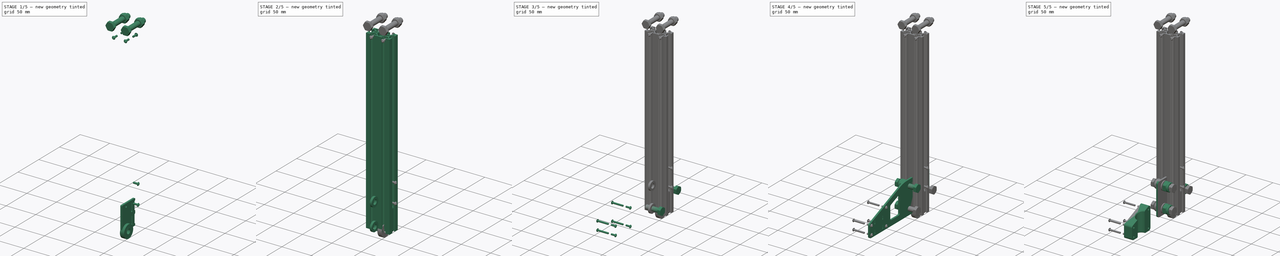
[diagram: build sequence overview — one tinted view per stage of 5, left to right]
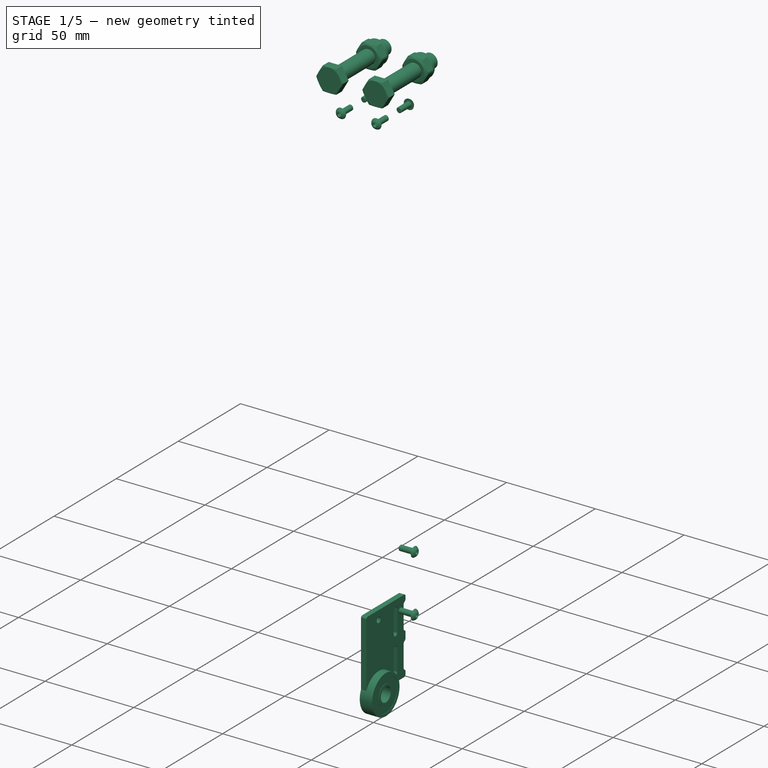
[diagram: stage 1 of 5 — iso view after this stage's code; geometry added in this stage tinted green]
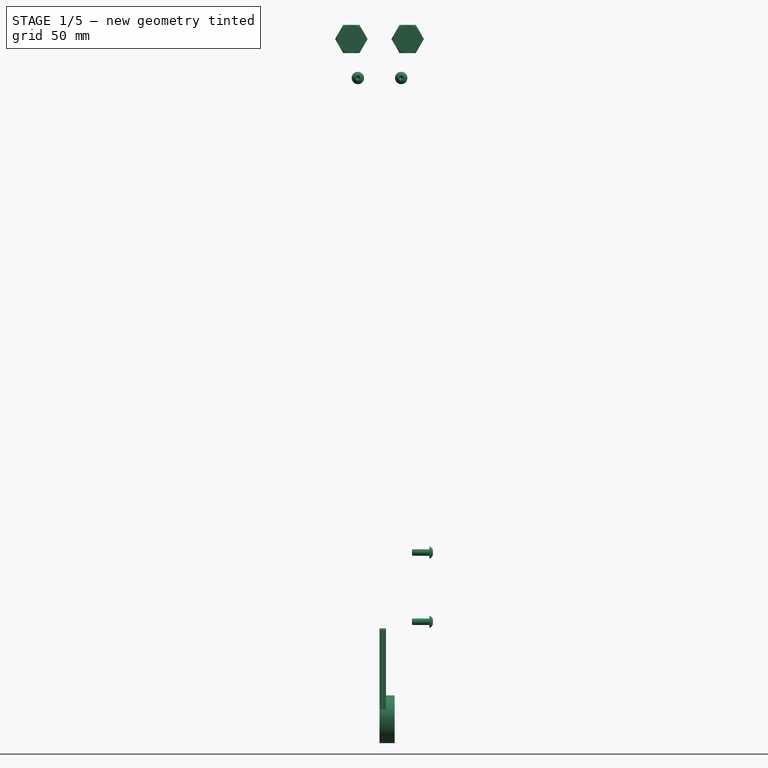
[diagram: stage 1 of 5 — front view after this stage's code; geometry added in this stage tinted green]
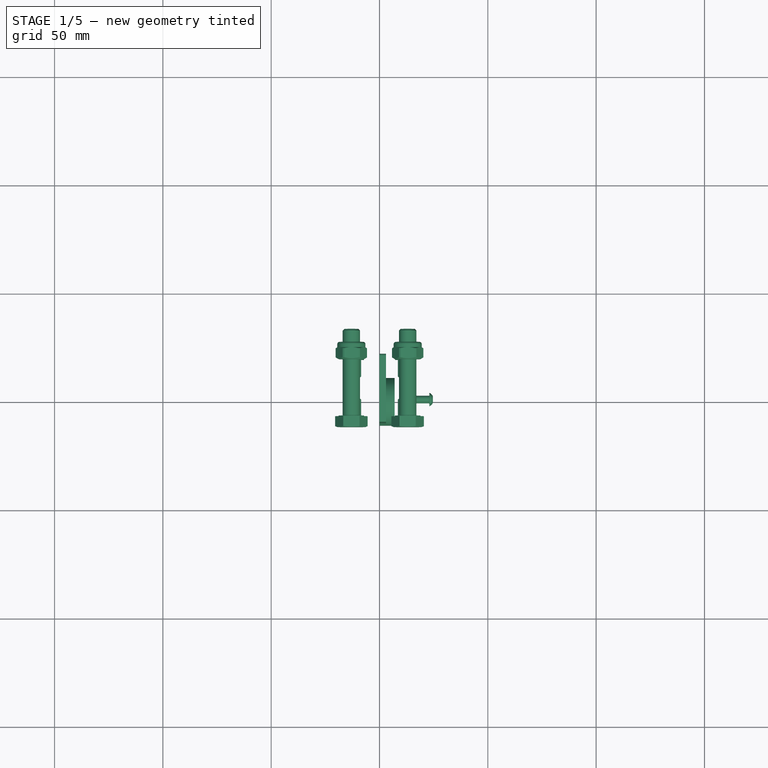
[diagram: stage 1 of 5 — top view after this stage's code; geometry added in this stage tinted green]
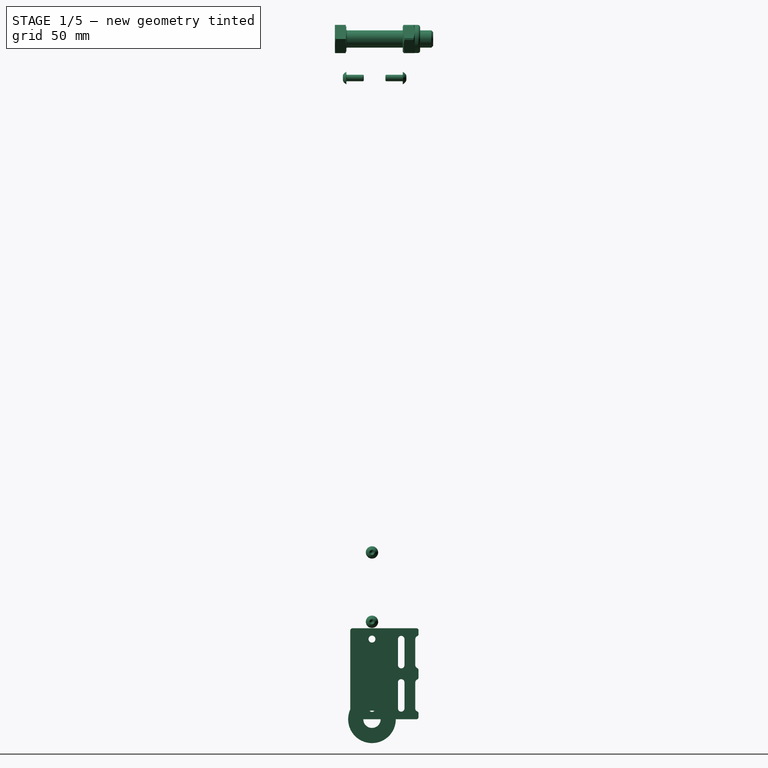
[diagram: stage 1 of 5 — right view after this stage's code; geometry added in this stage tinted green]
FCSTD DOCUMENT  (FreeCAD 2021.1015R24301 +4280 (Git))
Label: BarbaHeatSetInsertPress
License: Creative Commons Attribution-NoDerivatives
LicenseURL: http://creativecommons.org/licenses/by-nd/4.0/
objects: Part::FeaturePython×36, App::Link×34, App::DocumentObjectGroup×12, Sketcher::SketchObject×11, PartDesign::Fillet×11, PartDesign::Body×9, PartDesign::Pad×8, TechDraw::DrawProjGroupItem×6, TechDraw::DrawProjGroup×6, App::Part×5, TechDraw::DrawSVGTemplate×4, TechDraw::DrawPage×4, PartDesign::Chamfer×3, PartDesign::SubShapeBinder×2, Part::SubShapeBinder×1, PartDesign::Line×1, PartDesign::Groove×1, PartDesign::Pocket×1, Part::Mirroring×1, PartDesign::FeatureBase×1, +1 more types
note: 138 computed .brp shape members not serialized (recipe doc carries the construction recipe); baked Part::Feature solids carry a one-line shape summary decoded from their .brp

FEATURE [PartDesign::Body] Body003  label="RenvoiAngle"
  AutoGroupSolids = false
  ExportMode = 0
  Group = -> [Sketch003,Pad003,Fillet005]
  Origin = -> Origin003
  SingleSolid = true
  Tip = -> Fillet005
  _ExportChildren = -> [Pad003,Fillet005]
  _GroupVersion = 1
FEATURE [TechDraw::DrawSVGTemplate] Template002
  Height = 210
  Orientation = 1
  Width = 297
FEATURE [TechDraw::DrawProjGroupItem] ProjItem002  label="Front002"
  CoarseView = false
  Direction = (1,0,0)
  Focus = 100
  HardHidden = false
  IsoCount = 0
  IsoHidden = false
  IsoVisible = false
  LockPosition = true
  Perspective = false
  Rotation = 0
  RotationVector = (0,-1,0)
  ScaleType = 2
  SeamHidden = false
  SeamVisible = true
  SmoothHidden = false
  SmoothVisible = true
  Source = -> [Fillet004]
  Type = 0
  X = 0
  XDirection = (0,-1,0)
  Y = 0
FEATURE [TechDraw::DrawProjGroup] ProjGroup002
  Anchor = -> ProjItem002
  AutoDistribute = true
  LockPosition = false
  ProjectionType = 0
  Rotation = 0
  ScaleType = 0
  Source = -> [Fillet004]
  Views = -> [ProjItem002]
  X = 37.8834
  Y = 177.439
  spacingX = 15
  spacingY = 15
FEATURE [TechDraw::DrawProjGroupItem] ProjItem003  label="Front003"
  CoarseView = false
  Direction = (0,-1,0)
  Focus = 100
  HardHidden = false
  IsoCount = 0
  IsoHidden = false
  IsoVisible = false
  LockPosition = true
  Perspective = false
  Rotation = 0
  RotationVector = (1,0,0)
  ScaleType = 2
  SeamHidden = false
  SeamVisible = true
  SmoothHidden = false
  SmoothVisible = true
  Source = -> [Fillet005]
  Type = 0
  X = 0
  XDirection = (1,0,0)
  Y = 0
FEATURE [TechDraw::DrawProjGroup] ProjGroup003
  Anchor = -> ProjItem003
  AutoDistribute = true
  LockPosition = false
  ProjectionType = 0
  Rotation = 0
  ScaleType = 0
  Source = -> [Fillet005]
  Views = -> [ProjItem003]
  X = 97.2859
  Y = 186.724
  spacingX = 15
  spacingY = 15
FEATURE [TechDraw::DrawProjGroupItem] ProjItem004  label="Front004"
  CoarseView = false
  Direction = (0,-1,0)
  Focus = 100
  HardHidden = false
  IsoCount = 0
  IsoHidden = false
  IsoVisible = false
  LockPosition = true
  Perspective = false
  Rotation = 0
  RotationVector = (1,0,0)
  ScaleType = 2
  SeamHidden = false
  SeamVisible = true
  SmoothHidden = false
  SmoothVisible = true
  Source = -> [Fillet005]
  Type = 0
  X = 0
  XDirection = (1,0,0)
  Y = 0
FEATURE [TechDraw::DrawProjGroup] ProjGroup004
  Anchor = -> ProjItem004
  AutoDistribute = true
  LockPosition = false
  ProjectionType = 0
  Rotation = 0
  ScaleType = 0
  Source = -> [Fillet005]
  Views = -> [ProjItem004]
  X = 142.83
  Y = 186.468
  spacingX = 15
  spacingY = 15
FEATURE [TechDraw::DrawPage] Page002  label="laser3mmChariot"
  KeepUpdated = true
  NextBalloonIndex = 1
  ProjectionType = 0
  Template = -> Template002
  Views = -> [ProjGroup002,ProjGroup003,ProjGroup004]
FEATURE [Sketcher::SketchObject] Sketch004
  FullyConstrained = true
  MapMode = 5
  Placement = pos=(0,0,0) rot=(0.57735,0.57735,0.57735;2.0944rad)
  Support = -> [YZ_Plane004]
  sketch-geometry (29):
    g0: LineSegment StartX=-10 StartY=0 StartZ=0 EndX=21.5 EndY=0 EndZ=0
    g1: LineSegment [constr] StartX=21.5 StartY=0 StartZ=0 EndX=21.5 EndY=42 EndZ=0
    g2: LineSegment StartX=21.5 StartY=42 StartZ=0 EndX=-10 EndY=42 EndZ=0
    g3: LineSegment StartX=-10 StartY=42 StartZ=0 EndX=-10 EndY=0 EndZ=0
    g4: Circle CenterX=0 CenterY=37 CenterZ=0 NormalX=0 NormalY=0 NormalZ=1 AngleXU=0 Radius=1.6
    g5: Circle CenterX=0 CenterY=5 CenterZ=0 NormalX=0 NormalY=0 NormalZ=1 AngleXU=0 Radius=1.6
    g6: ArcOfCircle CenterX=13.5 CenterY=37 CenterZ=0 NormalX=0 NormalY=0 NormalZ=1 AngleXU=0 Radius=1.5 StartAngle=2e-15 EndAngle=3.14159
    g7: ArcOfCircle CenterX=13.5 CenterY=25 CenterZ=0 NormalX=0 NormalY=0 NormalZ=1 AngleXU=0 Radius=1.5 StartAngle=3.14159 EndAngle=6.28319
    g8: LineSegment StartX=12 StartY=37 StartZ=0 EndX=12 EndY=25 EndZ=0
    g9: LineSegment StartX=15 StartY=37 StartZ=0 EndX=15 EndY=25 EndZ=0
    g10: ArcOfCircle CenterX=13.5 CenterY=17 CenterZ=0 NormalX=0 NormalY=0 NormalZ=1 AngleXU=0 Radius=1.5 StartAngle=1.1e-15 EndAngle=3.14159
    g11: ArcOfCircle CenterX=13.5 CenterY=5 CenterZ=0 NormalX=0 NormalY=0 NormalZ=1 AngleXU=0 Radius=1.5 StartAngle=3.14159 EndAngle=6.28319
    g12: LineSegment StartX=12 StartY=17 StartZ=0 EndX=12 EndY=5 EndZ=0
    g13: LineSegment StartX=15 StartY=17 StartZ=0 EndX=15 EndY=5 EndZ=0
    g14: ArcOfCircle [constr] CenterX=21.5 CenterY=37 CenterZ=0 NormalX=0 NormalY=0 NormalZ=1 AngleXU=0 Radius=1.5 StartAngle=2e-15 EndAngle=3.14159
    g15: ArcOfCircle [constr] CenterX=21.5 CenterY=25 CenterZ=0 NormalX=0 NormalY=0 NormalZ=1 AngleXU=0 Radius=1.5 StartAngle=3.14159 EndAngle=6.28319
    g16: LineSegment StartX=20 StartY=37 StartZ=0 EndX=20 EndY=25 EndZ=0
    g17: LineSegment [constr] StartX=23 StartY=37 StartZ=0 EndX=23 EndY=25 EndZ=0
    g18: ArcOfCircle [constr] CenterX=21.5 CenterY=17 CenterZ=0 NormalX=0 NormalY=0 NormalZ=1 AngleXU=0 Radius=1.5 StartAngle=-9e-16 EndAngle=3.14159
    g19: ArcOfCircle [constr] CenterX=21.5 CenterY=5 CenterZ=0 NormalX=0 NormalY=0 NormalZ=1 AngleXU=0 Radius=1.5 StartAngle=3.14159 EndAngle=6.28319
    g20: LineSegment StartX=20 StartY=17 StartZ=0 EndX=20 EndY=5 EndZ=0
    g21: LineSegment [constr] StartX=23 StartY=17 StartZ=0 EndX=23 EndY=5 EndZ=0
    g22: LineSegment StartX=21.5 StartY=42 StartZ=0 EndX=21.5 EndY=38.5 EndZ=0
    g23: LineSegment StartX=21.5 StartY=23.5 StartZ=0 EndX=21.5 EndY=18.5 EndZ=0
    g24: LineSegment StartX=21.5 StartY=0 StartZ=0 EndX=21.5 EndY=3.5 EndZ=0
    g25: ArcOfCircle CenterX=21.5 CenterY=25 CenterZ=0 NormalX=0 NormalY=0 NormalZ=1 AngleXU=0 Radius=1.5 StartAngle=3.14159 EndAngle=4.71239
    g26: ArcOfCircle CenterX=21.5 CenterY=17 CenterZ=0 NormalX=0 NormalY=0 NormalZ=1 AngleXU=0 Radius=1.5 StartAngle=1.5708 EndAngle=3.14159
    g27: ArcOfCircle CenterX=21.5 CenterY=5 CenterZ=0 NormalX=0 NormalY=0 NormalZ=1 AngleXU=0 Radius=1.5 StartAngle=3.14159 EndAngle=4.71239
    g28: ArcOfCircle CenterX=21.5 CenterY=37 CenterZ=0 NormalX=0 NormalY=0 NormalZ=1 AngleXU=0 Radius=1.5 StartAngle=1.5708 EndAngle=3.14159
  constraints (76):
    c: Coincident(g0,g1)
    c: Coincident(g1,g2)
    c: Coincident(g2,g3)
    c: Coincident(g3,g0)
    c: Horizontal(g0)
    c: Horizontal(g2)
    c: Vertical(g1)
    c: Vertical(g3)
    c: PointOnObject(g0,g-1)
    c: DistanceX(g0) = -10
    c: PointOnObject(g4,g-2)
    c: PointOnObject(g5,g-2)
    c: Diameter(g5) = 3.2
    c: Equal(g5,g4)
    c: DistanceY(g4,g2) = 5
    c: DistanceY(g0,g5) = 5
    c: Tangent(g6,g9) = 1.5708
    c: Tangent(g6,g8) = -1.5708
    c: Tangent(g8,g7) = -1.5708
    c: Tangent(g9,g7) = 1.5708
    c: Vertical(g8)
    c: Equal(g6,g7)
    c: Tangent(g10,g13) = 1.5708
    c: Tangent(g10,g12) = -1.5708
    c: Tangent(g12,g11) = -1.5708
    c: Tangent(g13,g11) = 1.5708
    c: Vertical(g12)
    c: Equal(g10,g11)
    c: Tangent(g14,g17) = 1.5708
    c: Tangent(g14,g16) = -1.5708
    c: Tangent(g16,g15) = -1.5708
    c: Tangent(g17,g15) = 1.5708
    c: Vertical(g16)
    c: Equal(g14,g15)
    c: PointOnObject(g14,g1)
    c: Tangent(g18,g21) = 1.5708
    c: Tangent(g18,g20) = -1.5708
    c: Tangent(g20,g19) = -1.5708
    c: Tangent(g21,g19) = 1.5708
    c: Vertical(g20)
    c: Equal(g18,g19)
    c: PointOnObject(g18,g1)
    c: Horizontal(g10,g18)
    c: Horizontal(g19,g11)
    c: Horizontal(g7,g15)
    c: Horizontal(g6,g14)
    c: Equal(g6,g14)
    c: Equal(g14,g10)
    c: Equal(g10,g18)
    c: Diameter(g14) = 3
    c: Equal(g17,g21)
    c: Horizontal(g6,g4)
    c: Horizontal(g11,g5)
    c: DistanceY(g17,g17) = 12
    c: DistanceY(g10,g7) = 8
    c: Vertical(g7,g10)
    c: DistanceX(g6,g14) = 5
    c: Coincident(g22,g2)
    c: PointOnObject(g22,g1)
    c: PointOnObject(g23,g1)
    c: PointOnObject(g23,g1)
    c: Coincident(g24,g0)
    c: Vertical(g24)
    c: DistanceX(g6) = 12
    c: Coincident(g25,g15)
    c: Coincident(g25,g16)
    c: Coincident(g25,g23)
    c: Coincident(g26,g18)
    c: Coincident(g26,g23)
    c: Coincident(g26,g20)
    c: Coincident(g27,g19)
    c: Coincident(g27,g20)
    c: Coincident(g27,g24)
    c: Coincident(g28,g14)
    c: Coincident(g28,g16)
    c: Coincident(g28,g22)
FEATURE [PartDesign::Pad] Pad004
  AddSubType = 0
  CheckUpToFaceLimits = true
  ClaimChildren = false
  Direction = (1,1,1)
  Fit = 0
  FitJoin = 0
  InnerFit = 0
  InnerFitJoin = 0
  InnerTaperAngle = 0
  InnerTaperAngleRev = 0
  Length = 3
  Length2 = 100
  Linearize = true
  NewSolid = false
  Placement = pos=(0,0,0) rot=(0.57735,0.57735,0.57735;2.0944rad)
  Profile = -> Sketch004
  Refine = true
  Suppress = false
  Type = 0
  _ProfileBasedVersion = 1
FEATURE [PartDesign::Fillet] Fillet006
  AddSubType = 0
  Base = -> Pad004 [Edge2,Edge5,Edge8,Edge11,Edge20,Edge23,Edge32,Edge1]
  BaseFeature = -> Pad004
  NewSolid = false
  Placement = pos=(0,0,0) rot=(0.57735,0.57735,0.57735;2.0944rad)
  Radius = 1
  Refine = true
  SupportTransform = false
  Suppress = false
FEATURE [PartDesign::Body] Body006  label="MorsGauche"
  AutoGroupSolids = false
  BaseFeature = -> Part__Mirroring
  ExportMode = 0
  Group = -> [BaseFeature,Sketch008,Pad006]
  Origin = -> Origin006
  SingleSolid = true
  Tip = -> Pad006
  _ExportChildren = -> [BaseFeature,Pad006]
  _GroupVersion = 1
FEATURE [App::Link] Link  label="Link(MorsGauche)"
  AutoLinkLabel = true
  AutoPlacement = true
  LinkPlacement = pos=(-30,-0.051986,-0.00806722) rot=(0,0,1;0rad)
  LinkedObject = -> Body006
  Placement = pos=(-30,-0.051986,-0.00806722) rot=(0,0,1;0rad)
  SyncGroupVisibility = false
  _LinkVersion = 1
FEATURE [App::Link] Link001  label="Link001(MorsDroit)"
  AutoLinkLabel = true
  AutoPlacement = true
  LinkedObject = -> Body005
  SyncGroupVisibility = false
  _LinkVersion = 1
FEATURE [App::Link] Link002  label="Link002(PorteFer)"
  AutoLinkLabel = true
  AutoPlacement = true
  LinkedObject = -> Body
  SyncGroupVisibility = false
  _LinkVersion = 1
FEATURE [App::Link] Link004  label="Link004(Rondelle)"
  AutoLinkLabel = true
  AutoPlacement = true
  LinkPlacement = pos=(-4.5,-19,49) rot=(0,0,1;0rad)
  LinkedObject = -> Body001
  Placement = pos=(-4.5,-19,49) rot=(0,0,1;0rad)
  SyncGroupVisibility = false
  _LinkVersion = 1
FEATURE [App::Link] Link005  label="Link005(Rondelle)"
  AutoLinkLabel = true
  AutoPlacement = true
  LinkPlacement = pos=(-4.5,-19,11) rot=(0,0,1;0rad)
  LinkedObject = -> Body001
  Placement = pos=(-4.5,-19,11) rot=(0,0,1;0rad)
  SyncGroupVisibility = false
  _LinkVersion = 1
FEATURE [App::Link] Link006  label="Link006(Rondelle)"
  AutoLinkLabel = true
  AutoPlacement = true
  LinkPlacement = pos=(-4.5,23.5,30) rot=(0,0,1;0rad)
  LinkedObject = -> Body001
  Placement = pos=(-4.5,23.5,30) rot=(0,0,1;0rad)
  SyncGroupVisibility = false
  _LinkVersion = 1
FEATURE [App::Link] Link007  label="Link007(Rondelle)"
  AutoLinkLabel = true
  AutoPlacement = true
  LinkPlacement = pos=(-7.5,-19,49) rot=(0,0,1;0rad)
  LinkedObject = -> Body001
  Placement = pos=(-7.5,-19,49) rot=(0,0,1;0rad)
  SyncGroupVisibility = false
  _LinkVersion = 1
FEATURE [App::Link] Link008  label="Link008(Rondelle)"
  AutoLinkLabel = true
  AutoPlacement = true
  LinkPlacement = pos=(-7.5,-19,11) rot=(0,0,1;0rad)
  LinkedObject = -> Body001
  Placement = pos=(-7.5,-19,11) rot=(0,0,1;0rad)
  SyncGroupVisibility = false
  _LinkVersion = 1
FEATURE [App::Link] Link009  label="Link009(Rondelle)"
  AutoLinkLabel = true
  AutoPlacement = true
  LinkPlacement = pos=(-7.5,23.5,30) rot=(0,0,1;0rad)
  LinkedObject = -> Body001
  Placement = pos=(-7.5,23.5,30) rot=(0,0,1;0rad)
  SyncGroupVisibility = false
  _LinkVersion = 1
FEATURE [App::DocumentObjectGroup] Group002  label="Rondelles001"
  ExportMode = 1
  Group = -> [Link004,Link005,Link006,Link007,Link008,Link009]
  _GroupVersion = 1
FEATURE [Sketcher::SketchObject] Sketch009
  FullyConstrained = true
  MapMode = 5
  Placement = pos=(0,0,0) rot=(1,0,0;1.5708rad)
  Support = -> [XZ_Plane007]
  sketch-geometry (12):
    g0: LineSegment StartX=0 StartY=11 StartZ=0 EndX=7 EndY=11 EndZ=0
    g1: LineSegment StartX=7 StartY=11 StartZ=0 EndX=7 EndY=9.5 EndZ=0
    g2: LineSegment StartX=7 StartY=9.5 StartZ=0 EndX=6.8 EndY=9.5 EndZ=0
    g3: LineSegment StartX=0 StartY=9.5 StartZ=0 EndX=0 EndY=11 EndZ=0
    g4: LineSegment StartX=0 StartY=5.5 StartZ=0 EndX=0.2 EndY=5.5 EndZ=0
    g5: LineSegment StartX=7 StartY=5.5 StartZ=0 EndX=7 EndY=4 EndZ=0
    g6: LineSegment StartX=7 StartY=4 StartZ=0 EndX=0 EndY=4 EndZ=0
    g7: LineSegment StartX=0 StartY=4 StartZ=0 EndX=0 EndY=5.5 EndZ=0
    g8: LineSegment StartX=6.8 StartY=9.5 StartZ=0 EndX=6.8 EndY=5.5 EndZ=0
    g9: LineSegment StartX=0.2 StartY=5.5 StartZ=0 EndX=0.2 EndY=9.5 EndZ=0
    g10: LineSegment StartX=0.2 StartY=9.5 StartZ=0 EndX=0 EndY=9.5 EndZ=0
    g11: LineSegment StartX=6.8 StartY=5.5 StartZ=0 EndX=7 EndY=5.5 EndZ=0
  constraints (34):
    c: Coincident(g0,g1)
    c: Coincident(g1,g2)
    c: Coincident(g10,g3)
    c: Coincident(g3,g0)
    c: Horizontal(g0)
    c: Horizontal(g2)
    c: Vertical(g1)
    c: Vertical(g3)
    c: PointOnObject(g0,g-2)
    c: Coincident(g11,g5)
    c: Coincident(g5,g6)
    c: Coincident(g6,g7)
    c: Coincident(g7,g4)
    c: Horizontal(g4)
    c: Horizontal(g6)
    c: Vertical(g5)
    c: Vertical(g7)
    c: PointOnObject(g4,g-2)
    c: Vertical(g8)
    c: Vertical(g9)
    c: Tangent(g2,g10)
    c: Coincident(g11,g8)
    c: Tangent(g4,g11)
    c: Coincident(g9,g10)
    c: Coincident(g9,g4)
    c: Coincident(g8,g2)
    c: PointOnObject(g1,g5)
    c: Equal(g2,g10)
    c: DistanceY(g6) = 4
    c: DistanceY(g0) = 11
    c: DistanceY(g3,g3) = 1.5
    c: DistanceY(g7,g7) = 1.5
    c: DistanceX(g10,g10) = 0.2
    c: DistanceX(g0,g0) = 7
FEATURE [PartDesign::Revolution] Revolution
  AddSubType = 0
  Angle = 360
  Axis = (1,0,0)
  Base = (0,0,0)
  ClaimChildren = false
  Fit = 0
  FitJoin = 0
  InnerFit = 0
  InnerFitJoin = 0
  NewSolid = false
  Placement = pos=(0,0,0) rot=(1,0,0;1.5708rad)
  Profile = -> Sketch009
  ReferenceAxis = -> Sketch009 [H_Axis]
  Refine = true
  Suppress = false
  _ProfileBasedVersion = 1
FEATURE [App::DocumentObjectGroup] Group007  label="Visserie002"
  ExportMode = 1
  Group = -> [Screw003,Screw004,Screw005,Nut005,Nut004,Nut003,Washer003,Washer004,Washer005]
  _GroupVersion = 1
FEATURE [App::Part] Part002  label="ContrePoids"
  ExportMode = 1
  Group = -> [Link014,Link015,Link016,Nut003,Link017,Link018,Link019,Link020,Group003,Link021,Link022,Link023,Group004,Nut004,Nut005,Screw003,Screw004,Screw005,Group007,Washer003,Washer004,Washer005]
  Origin = -> Origin010
  Placement = pos=(-21,-4.64916e-06,60) rot=(0,0,1;0rad)
  _ExportChildren = -> [Link014,Group003,Group004,Group007]
  _GroupVersion = 1
FEATURE [App::Link] Link025  label="Link025(RenvoiAngle)"
  AutoLinkLabel = true
  AutoPlacement = true
  LinkPlacement = pos=(0,-8.8,288) rot=(0,0,1;0rad)
  LinkedObject = -> Body003
  Placement = pos=(0,-8.8,288) rot=(0,0,1;0rad)
  SyncGroupVisibility = false
  _LinkVersion = 1
FEATURE [App::Link] Link026  label="Link026(RenvoiAngle)"
  AutoLinkLabel = true
  AutoPlacement = true
  LinkPlacement = pos=(0,14.2,288) rot=(0,0,1;0rad)
  LinkedObject = -> Body003
  Placement = pos=(0,14.2,288) rot=(0,0,1;0rad)
  SyncGroupVisibility = false
  _LinkVersion = 1
FEATURE [App::Link] Link027  label="Link027(608ZZ)"
  AutoLinkLabel = true
  AutoPlacement = true
  LinkPlacement = pos=(13,1.2,314) rot=(0,0,-1;1.5708rad)
  LinkedObject = -> Body007
  Placement = pos=(13,1.2,314) rot=(0,0,-1;1.5708rad)
  SyncGroupVisibility = false
  _LinkVersion = 1
FEATURE [App::Link] Link028  label="Link028(Rondelle)"
  AutoLinkLabel = true
  AutoPlacement = true
  LinkPlacement = pos=(-13,-5.8,314) rot=(0,0,-1;1.5708rad)
  LinkedObject = -> Body001
  Placement = pos=(-13,-5.8,314) rot=(0,0,-1;1.5708rad)
  SyncGroupVisibility = false
  _LinkVersion = 1
FEATURE [App::Link] Link029  label="Link029(Rondelle)"
  AutoLinkLabel = true
  AutoPlacement = true
  LinkPlacement = pos=(-13,11.2,314) rot=(0,0,-1;1.5708rad)
  LinkedObject = -> Body001
  Placement = pos=(-13,11.2,314) rot=(0,0,-1;1.5708rad)
  SyncGroupVisibility = false
  _LinkVersion = 1
FEATURE [App::Link] Link030  label="Link030(Rondelle)"
  AutoLinkLabel = true
  AutoPlacement = true
  LinkPlacement = pos=(13,11.2,314) rot=(0,0,-1;1.5708rad)
  LinkedObject = -> Body001
  Placement = pos=(13,11.2,314) rot=(0,0,-1;1.5708rad)
  SyncGroupVisibility = false
  _LinkVersion = 1
FEATURE [App::Link] Link031  label="Link031(Rondelle)"
  AutoLinkLabel = true
  AutoPlacement = true
  LinkPlacement = pos=(13,-5.8,314) rot=(0,0,-1;1.5708rad)
  LinkedObject = -> Body001
  Placement = pos=(13,-5.8,314) rot=(0,0,-1;1.5708rad)
  SyncGroupVisibility = false
  _LinkVersion = 1
FEATURE [App::Link] Link032  label="Link032(608ZZ)"
  AutoLinkLabel = true
  AutoPlacement = true
  LinkPlacement = pos=(-13,1.2,314) rot=(0,0,-1;1.5708rad)
  LinkedObject = -> Body007
  Placement = pos=(-13,1.2,314) rot=(0,0,-1;1.5708rad)
  SyncGroupVisibility = false
  _LinkVersion = 1
FEATURE [App::Link] Link033  label="Link033(608ZZ)"
  AutoLinkLabel = true
  AutoPlacement = true
  LinkPlacement = pos=(-13,8.2,314) rot=(0,0,-1;1.5708rad)
  LinkedObject = -> Body007
  Placement = pos=(-13,8.2,314) rot=(0,0,-1;1.5708rad)
  SyncGroupVisibility = false
  _LinkVersion = 1
FEATURE [App::Link] Link034  label="Link034(608ZZ)"
  AutoLinkLabel = true
  AutoPlacement = true
  LinkPlacement = pos=(13,8.2,314) rot=(0,0,-1;1.5708rad)
  LinkedObject = -> Body007
  Placement = pos=(13,8.2,314) rot=(0,0,-1;1.5708rad)
  SyncGroupVisibility = false
  _LinkVersion = 1
FEATURE [App::DocumentObjectGroup] Group008  label="Rondelles003"
  ExportMode = 1
  Group = -> [Link028,Link029,Link030,Link031]
  _GroupVersion = 1
FEATURE [App::DocumentObjectGroup] Group009  label="Roulements003"
  ExportMode = 1
  Group = -> [Link027,Link032,Link033,Link034]
  _GroupVersion = 1
FEATURE [Part::FeaturePython] Screw014  label="M8x40-Screw"  # Fasteners workbench fastener (typed FeaturePython)
  Placement = pos=(13,-11.8,314) rot=(1,0,0;1.5708rad)
  diameter = 9
  invert = false
  length = 5
  lengthCustom = 40
  matchOuter = false
  offset = 0
  thread = false
  type = 29
FEATURE [Part::FeaturePython] Nut006  label="M8-Nut"  # Fasteners workbench fastener (typed FeaturePython)
  Placement = pos=(13,14.2,314) rot=(-1,0,0;1.5708rad)
  diameter = 6
  invert = false
  matchOuter = false
  offset = 0
  thread = false
  type = 5
FEATURE [Part::FeaturePython] Screw015  label="M8x40-Screw001"  # Fasteners workbench fastener (typed FeaturePython)
  Placement = pos=(-13,-11.8,314) rot=(1,0,0;1.5708rad)
  diameter = 9
  invert = false
  length = 5
  lengthCustom = 40
  matchOuter = false
  offset = 0
  thread = false
  type = 29
FEATURE [Part::FeaturePython] Nut007  label="M8-Nut001"  # Fasteners workbench fastener (typed FeaturePython)
  Placement = pos=(-13,14.2,314) rot=(-1,0,0;1.5708rad)
  diameter = 6
  invert = false
  matchOuter = false
  offset = 0
  thread = false
  type = 5
FEATURE [App::Link] Link035  label="Link035(GuideCable)"
  AutoLinkLabel = true
  AutoPlacement = true
  LinkPlacement = pos=(20,-7.15256e-06,40) rot=(0,0,1;0rad)
  LinkedObject = -> Body004
  Placement = pos=(20,-7.15256e-06,40) rot=(0,0,1;0rad)
  SyncGroupVisibility = false
  _LinkVersion = 1
FEATURE [Part::FeaturePython] Screw016  label="M3x8-Screw010"  # Fasteners workbench fastener (typed FeaturePython)
  Placement = pos=(10,-11.8,296) rot=(-0.57735,-0.57735,0.57735;4.18879rad)
  diameter = 1
  invert = false
  length = 1
  lengthCustom = 8
  matchOuter = false
  offset = 0
  thread = false
  type = 40
FEATURE [Part::FeaturePython] Screw017  label="M3x8-Screw012"  # Fasteners workbench fastener (typed FeaturePython)
  Placement = pos=(10,14.2,296) rot=(-0.57735,-0.57735,-0.57735;2.0944rad)
  diameter = 1
  invert = false
  length = 1
  lengthCustom = 8
  matchOuter = false
  offset = 0
  thread = false
  type = 40
FEATURE [Part::FeaturePython] Screw018  label="M3x8-Screw009"  # Fasteners workbench fastener (typed FeaturePython)
  Placement = pos=(-10,-11.8,296) rot=(-0.57735,-0.57735,0.57735;4.18879rad)
  diameter = 1
  invert = false
  length = 1
  lengthCustom = 8
  matchOuter = false
  offset = 0
  thread = false
  type = 40
FEATURE [Part::FeaturePython] Screw019  label="M3x8-Screw011"  # Fasteners workbench fastener (typed FeaturePython)
  Placement = pos=(-10,14.2,296) rot=(-0.57735,-0.57735,-0.57735;2.0944rad)
  diameter = 1
  invert = false
  length = 1
  lengthCustom = 8
  matchOuter = false
  offset = 0
  thread = false
  type = 40
FEATURE [App::DocumentObjectGroup] Group010  label="Visserie003"
  ExportMode = 1
  Group = -> [Screw014,Nut006,Screw015,Nut007,Screw016,Screw017,Screw018,Screw019]
  _GroupVersion = 1
FEATURE [App::Part] Part003  label="EnsemblePoulie"
  ExportMode = 1
  Group = -> [Link025,Link026,Link027,Link028,Link029,Link030,Link031,Link032,Link033,Link034,Group008,Group009,Screw014,Nut006,Screw015,Nut007,Group010,Screw016,Screw017,Screw018,Screw019]
  Origin = -> Origin012
  _ExportChildren = -> [Link025,Link026,Group008,Group009,Group010]
  _GroupVersion = 1
FEATURE [Part::FeaturePython] Screw020  label="M3x8-Screw015"  # Fasteners workbench fastener (typed FeaturePython)
  Placement = pos=(23,-7.15256e-06,77) rot=(0.707107,0,0.707107;3.14159rad)
  diameter = 1
  invert = false
  length = 1
  lengthCustom = 8
  matchOuter = false
  offset = 0
  thread = false
  type = 40
FEATURE [Part::FeaturePython] Screw021  label="M3x8-Screw014"  # Fasteners workbench fastener (typed FeaturePython)
  Placement = pos=(23,-7.15256e-06,45) rot=(0.707107,0,0.707107;3.14159rad)
  diameter = 1
  invert = false
  length = 1
  lengthCustom = 8
  matchOuter = false
  offset = 0
  thread = false
  type = 40
FEATURE [App::DocumentObjectGroup] Group011  label="Visserie004"
  ExportMode = 1
  Group = -> [Screw020,Screw021]
  _GroupVersion = 1
FEATURE [App::Part] Part004  label="EnsembleGuideCable"
  ExportMode = 1
  Group = -> [Link035,Screw020,Screw021,Group011]
  Origin = -> Origin013
  _ExportChildren = -> [Link035,Group011]
  _GroupVersion = 1
FEATURE [App::Part] Part  label="Presse"
  ExportMode = 1
  Group = -> [Part001,Part002,Link024,Part003,Part004]
  Origin = -> Origin007
  _ExportChildren = -> [Part001,Part002,Link024,Part003,Part004]
  _GroupVersion = 1
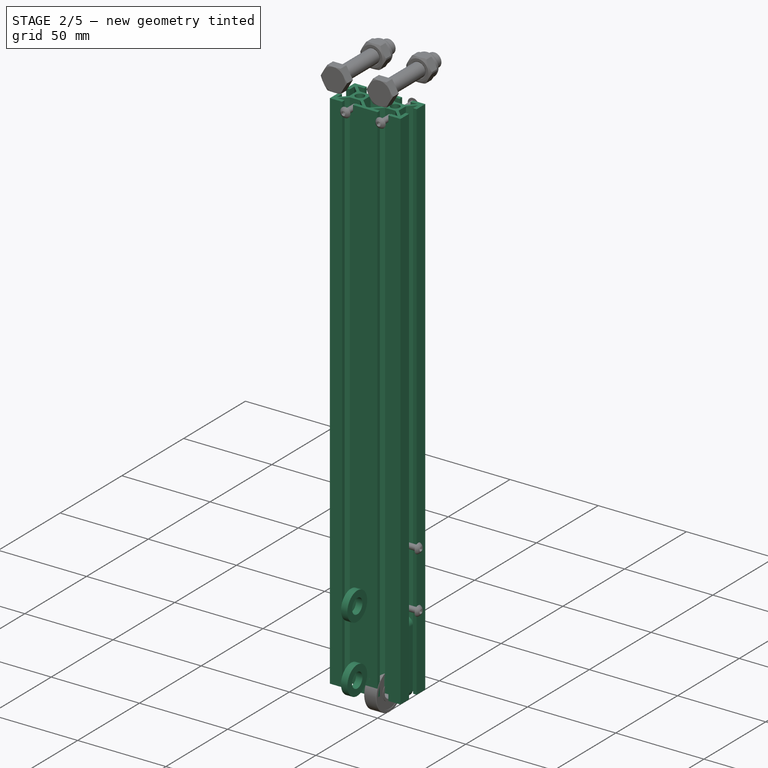
[diagram: stage 2 of 5 — iso view after this stage's code; geometry added in this stage tinted green]
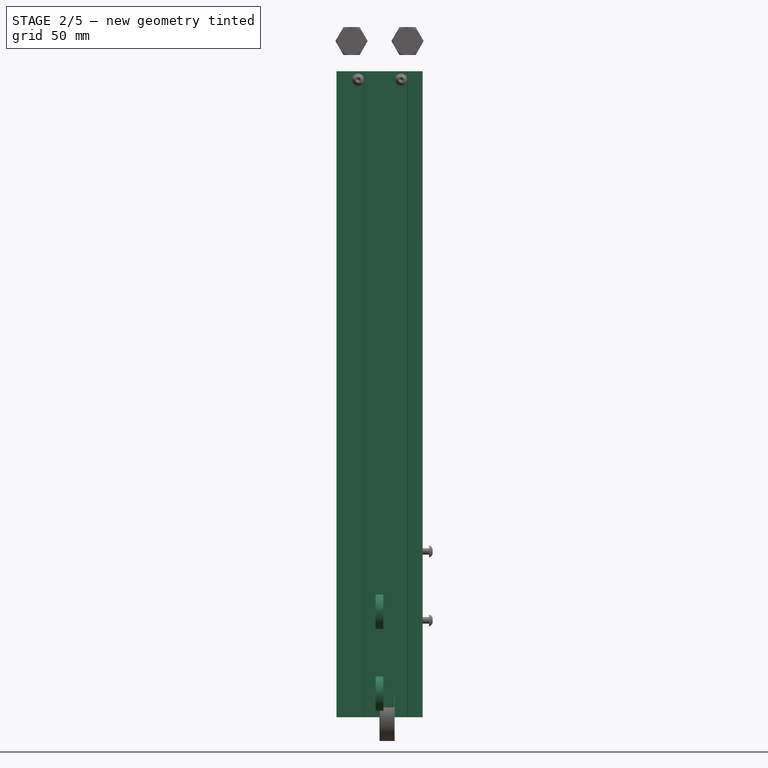
[diagram: stage 2 of 5 — front view after this stage's code; geometry added in this stage tinted green]
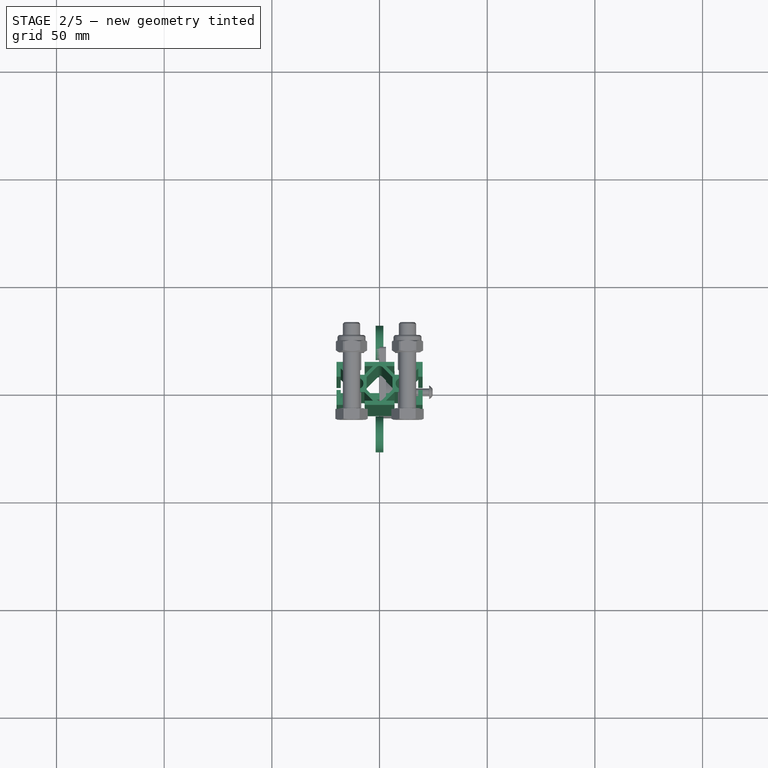
[diagram: stage 2 of 5 — top view after this stage's code; geometry added in this stage tinted green]
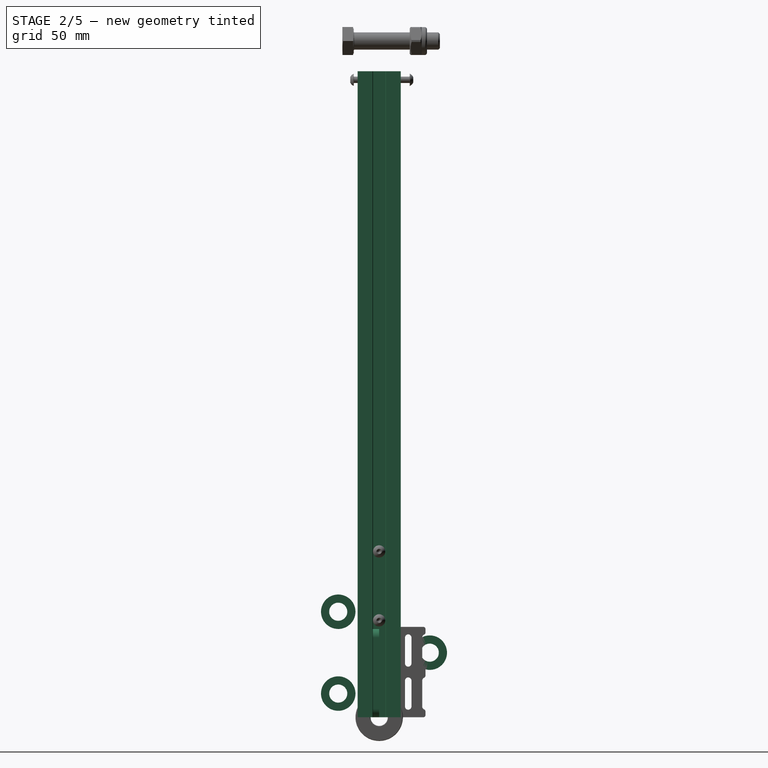
[diagram: stage 2 of 5 — right view after this stage's code; geometry added in this stage tinted green]
FEATURE [PartDesign::Body] Body  label="PorteFer"
  AutoGroupSolids = false
  ExportMode = 0
  Group = -> [Sketch,Pad,Fillet,Fillet001,Fillet002,Fillet003]
  Origin = -> Origin
  SingleSolid = true
  Tip = -> Fillet003
  _ExportChildren = -> [Pad,Fillet,Fillet001,Fillet002,Fillet003]
  _GroupVersion = 1
FEATURE [TechDraw::DrawSVGTemplate] Template
  Height = 210
  Orientation = 1
  Width = 297
FEATURE [TechDraw::DrawProjGroupItem] ProjItem  label="Front"
  CoarseView = false
  Direction = (1,0,0)
  Focus = 100
  HardHidden = false
  IsoCount = 0
  IsoHidden = false
  IsoVisible = false
  LockPosition = true
  Perspective = false
  Rotation = 0
  RotationVector = (0,-1,0)
  ScaleType = 2
  SeamHidden = false
  SeamVisible = true
  SmoothHidden = false
  SmoothVisible = true
  Source = -> [Fillet003]
  Type = 0
  X = 0
  XDirection = (0,-1,0)
  Y = 0
FEATURE [TechDraw::DrawProjGroup] ProjGroup
  Anchor = -> ProjItem
  AutoDistribute = true
  LockPosition = false
  ProjectionType = 0
  Rotation = 0
  ScaleType = 0
  Source = -> [Fillet003]
  Views = -> [ProjItem]
  X = 80.883
  Y = 178.574
  spacingX = 15
  spacingY = 15
FEATURE [TechDraw::DrawPage] Page  label="laser3mmPorteFer"
  KeepUpdated = true
  NextBalloonIndex = 1
  ProjectionType = 0
  Template = -> Template
  Views = -> [ProjGroup]
FEATURE [Sketcher::SketchObject] Sketch001
  FullyConstrained = true
  MapMode = 5
  Placement = pos=(0,0,0) rot=(0.57735,0.57735,0.57735;2.0944rad)
  Support = -> [YZ_Plane001]
  sketch-geometry (2):
    g0: Circle CenterX=0 CenterY=0 CenterZ=0 NormalX=0 NormalY=0 NormalZ=1 AngleXU=0 Radius=4
    g1: Circle CenterX=0 CenterY=0 CenterZ=0 NormalX=0 NormalY=0 NormalZ=1 AngleXU=0 Radius=7.5
  constraints (4):
    c: Coincident(g0,g-1)
    c: Coincident(g1,g0)
    c: Diameter(g0) = 8
    c: Diameter(g1) = 15
FEATURE [PartDesign::Pad] Pad001
  AddSubType = 0
  CheckUpToFaceLimits = true
  ClaimChildren = false
  Direction = (1,1,1)
  Fit = 0
  FitJoin = 0
  InnerFit = 0
  InnerFitJoin = 0
  InnerTaperAngle = 0
  InnerTaperAngleRev = 0
  Length = 3
  Length2 = 100
  Linearize = true
  NewSolid = false
  Placement = pos=(0,0,0) rot=(0.57735,0.57735,0.57735;2.0944rad)
  Profile = -> Sketch001
  Refine = true
  Suppress = false
  Type = 0
  _ProfileBasedVersion = 1
FEATURE [PartDesign::Body] Body002  label="Chariot"
  AutoGroupSolids = false
  ExportMode = 0
  Group = -> [Binder,Sketch002,Pad002,Fillet004]
  Origin = -> Origin002
  SingleSolid = true
  Tip = -> Fillet004
  _ExportChildren = -> [Binder,Pad002,Fillet004]
  _GroupVersion = 1
FEATURE [Sketcher::SketchObject] Sketch003
  FullyConstrained = true
  MapMode = 5
  Placement = pos=(0,0,0) rot=(1,0,0;1.5708rad)
  Support = -> [XZ_Plane003]
  sketch-geometry (11):
    g0: LineSegment StartX=-20 StartY=0 StartZ=0 EndX=20 EndY=0 EndZ=0
    g1: LineSegment StartX=20 StartY=0 StartZ=0 EndX=20 EndY=41 EndZ=0
    g2: LineSegment StartX=20 StartY=41 StartZ=0 EndX=-20 EndY=41 EndZ=0
    g3: LineSegment StartX=-20 StartY=41 StartZ=0 EndX=-20 EndY=0 EndZ=0
    g4: Circle CenterX=-13 CenterY=26 CenterZ=0 NormalX=0 NormalY=0 NormalZ=1 AngleXU=0 Radius=4
    g5: Circle CenterX=13 CenterY=26 CenterZ=0 NormalX=0 NormalY=0 NormalZ=1 AngleXU=0 Radius=4
    g6: Circle [constr] CenterX=13 CenterY=26 CenterZ=0 NormalX=0 NormalY=0 NormalZ=1 AngleXU=0 Radius=11
    g7: Circle [constr] CenterX=-13 CenterY=26 CenterZ=0 NormalX=0 NormalY=0 NormalZ=1 AngleXU=0 Radius=11
    g8: Circle CenterX=-10 CenterY=8 CenterZ=0 NormalX=0 NormalY=0 NormalZ=1 AngleXU=0 Radius=1.5
    g9: Circle CenterX=10 CenterY=8 CenterZ=0 NormalX=0 NormalY=0 NormalZ=1 AngleXU=0 Radius=1.5
    g10: GeomPoint [constr] X=24 Y=26 Z=0
  constraints (27):
    c: Coincident(g0,g1)
    c: Coincident(g1,g2)
    c: Coincident(g2,g3)
    c: Coincident(g3,g0)
    c: Horizontal(g0)
    c: Vertical(g1)
    c: Vertical(g3)
    c: PointOnObject(g0,g-1)
    c: Symmetric(g1,g2,g-2)
    c: Symmetric(g5,g4,g-2)
    c: Diameter(g4) = 8
    c: Equal(g4,g5)
    c: Coincident(g6,g5)
    c: Coincident(g7,g4)
    c: Diameter(g6) = 22
    c: Equal(g6,g7)
    c: DistanceX(g2,g1) = 40
    c: DistanceY(g5,g1) = 15
    c: Diameter(g8) = 3
    c: Equal(g9,g8)
    c: Symmetric(g9,g8,g-2)
    c: DistanceX(g-1,g9) = 10
    c: DistanceY(g-1,g9) = 8
    c: DistanceY(g9,g5) = 18
    c: PointOnObject(g10,g6)
    c: Horizontal(g10,g5)
    c: DistanceX(g0,g10) = 4
FEATURE [PartDesign::Pad] Pad003
  AddSubType = 0
  CheckUpToFaceLimits = true
  ClaimChildren = false
  Direction = (1,1,1)
  Fit = 0
  FitJoin = 0
  InnerFit = 0
  InnerFitJoin = 0
  InnerTaperAngle = 0
  InnerTaperAngleRev = 0
  Length = 3
  Length2 = 100
  Linearize = true
  NewSolid = false
  Placement = pos=(0,0,0) rot=(1,0,0;1.5708rad)
  Profile = -> Sketch003
  Refine = true
  Suppress = false
  Type = 0
  _ProfileBasedVersion = 1
FEATURE [PartDesign::Fillet] Fillet005
  AddSubType = 0
  Base = -> Pad003 [Edge5,Edge8,Edge1,Edge2]
  BaseFeature = -> Pad003
  NewSolid = false
  Placement = pos=(0,0,0) rot=(1,0,0;1.5708rad)
  Radius = 4
  Refine = true
  SupportTransform = false
  Suppress = false
FEATURE [PartDesign::Chamfer] Chamfer001
  AddSubType = 0
  Angle = 45
  Base = -> Revolution [Edge1,Edge2,Edge10,Edge11]
  BaseFeature = -> Revolution
  ChamferType = 0
  FlipDirection = false
  NewSolid = false
  Placement = pos=(0,0,0) rot=(1,0,0;1.5708rad)
  Refine = true
  Size = 0.2
  Size2 = 1
  SupportTransform = false
  Suppress = false
FEATURE [Sketcher::SketchObject] Sketch010
  FullyConstrained = true
  MapMode = 5
  Support = -> [XY_Plane008]
  sketch-geometry (61):
    g0: Circle CenterX=-10 CenterY=0 CenterZ=0 NormalX=0 NormalY=0 NormalZ=1 AngleXU=0 Radius=2.5
    g1: Circle CenterX=10 CenterY=0 CenterZ=0 NormalX=0 NormalY=0 NormalZ=1 AngleXU=0 Radius=2.5
    g2: LineSegment StartX=-12.9393 StartY=4 StartZ=0 EndX=-7.06066 EndY=4 EndZ=0
    g3: LineSegment StartX=-7.06066 StartY=4 StartZ=0 EndX=-3.06066 EndY=8 EndZ=0
    g4: LineSegment StartX=-3.06066 StartY=8 StartZ=0 EndX=-6.9 EndY=8 EndZ=0
    g5: LineSegment StartX=-6.9 StartY=8 StartZ=0 EndX=-6.9 EndY=10 EndZ=0
    g6: LineSegment StartX=-6.9 StartY=10 StartZ=0 EndX=6.9 EndY=10 EndZ=0
    g7: LineSegment StartX=6.9 StartY=10 StartZ=0 EndX=6.9 EndY=8 EndZ=0
    g8: LineSegment StartX=6.9 StartY=8 StartZ=0 EndX=3.06066 EndY=8 EndZ=0
    g9: LineSegment StartX=3.06066 StartY=8 StartZ=0 EndX=7.06066 EndY=4 EndZ=0
    g10: LineSegment StartX=7.06066 StartY=4 StartZ=0 EndX=12.9393 EndY=4 EndZ=0
    g11: LineSegment StartX=12.9393 StartY=4 StartZ=0 EndX=16.9393 EndY=8 EndZ=0
    g12: LineSegment StartX=16.9393 StartY=8 StartZ=0 EndX=13.1 EndY=8 EndZ=0
    g13: LineSegment StartX=13.1 StartY=8 StartZ=0 EndX=13.1 EndY=10 EndZ=0
    g14: LineSegment StartX=13.1 StartY=10 StartZ=0 EndX=20 EndY=10 EndZ=0
    g15: LineSegment StartX=20 StartY=10 StartZ=0 EndX=20 EndY=3.1 EndZ=0
    g16: LineSegment StartX=20 StartY=3.1 StartZ=0 EndX=18 EndY=3.1 EndZ=0
    g17: LineSegment StartX=18 StartY=3.1 StartZ=0 EndX=18 EndY=6.93934 EndZ=0
    g18: LineSegment StartX=18 StartY=6.93934 StartZ=0 EndX=14 EndY=2.93934 EndZ=0
    g19: LineSegment StartX=14 StartY=2.93934 StartZ=0 EndX=14 EndY=-2.93934 EndZ=0
    g20: LineSegment StartX=14 StartY=-2.93934 StartZ=0 EndX=18 EndY=-6.93934 EndZ=0
    g21: LineSegment StartX=18 StartY=-6.93934 StartZ=0 EndX=18 EndY=-3.1 EndZ=0
    g22: LineSegment StartX=18 StartY=-3.1 StartZ=0 EndX=20 EndY=-3.1 EndZ=0
    g23: LineSegment StartX=20 StartY=-3.1 StartZ=0 EndX=20 EndY=-10 EndZ=0
    g24: LineSegment StartX=20 StartY=-10 StartZ=0 EndX=13.1 EndY=-10 EndZ=0
    g25: LineSegment StartX=13.1 StartY=-10 StartZ=0 EndX=13.1 EndY=-8 EndZ=0
    g26: LineSegment StartX=13.1 StartY=-8 StartZ=0 EndX=16.9393 EndY=-8 EndZ=0
    g27: LineSegment StartX=16.9393 StartY=-8 StartZ=0 EndX=12.9393 EndY=-4 EndZ=0
    g28: LineSegment StartX=12.9393 StartY=-4 StartZ=0 EndX=7.06066 EndY=-4 EndZ=0
    g29: LineSegment StartX=7.06066 StartY=-4 StartZ=0 EndX=3.06066 EndY=-8 EndZ=0
    g30: LineSegment StartX=3.06066 StartY=-8 StartZ=0 EndX=6.9 EndY=-8 EndZ=0
    g31: LineSegment StartX=6.9 StartY=-8 StartZ=0 EndX=6.9 EndY=-10 EndZ=0
    g32: LineSegment StartX=6.9 StartY=-10 StartZ=0 EndX=-6.9 EndY=-10 EndZ=0
    g33: LineSegment StartX=-6.9 StartY=-10 StartZ=0 EndX=-6.9 EndY=-8 EndZ=0
    g34: LineSegment StartX=-6.9 StartY=-8 StartZ=0 EndX=-3.06066 EndY=-8 EndZ=0
    g35: LineSegment StartX=-3.06066 StartY=-8 StartZ=0 EndX=-7.06066 EndY=-4 EndZ=0
    g36: LineSegment StartX=-7.06066 StartY=-4 StartZ=0 EndX=-12.9393 EndY=-4 EndZ=0
    g37: LineSegment StartX=-12.9393 StartY=-4 StartZ=0 EndX=-16.9393 EndY=-8 EndZ=0
    g38: LineSegment StartX=-16.9393 StartY=-8 StartZ=0 EndX=-13.1 EndY=-8 EndZ=0
    g39: LineSegment StartX=-13.1 StartY=-8 StartZ=0 EndX=-13.1 EndY=-10 EndZ=0
    g40: LineSegment StartX=-13.1 StartY=-10 StartZ=0 EndX=-20 EndY=-10 EndZ=0
    g41: LineSegment StartX=-20 StartY=-10 StartZ=0 EndX=-20 EndY=-3.1 EndZ=0
    g42: LineSegment StartX=-20 StartY=-3.1 StartZ=0 EndX=-18 EndY=-3.1 EndZ=0
    g43: LineSegment StartX=-18 StartY=-3.1 StartZ=0 EndX=-18 EndY=-6.93934 EndZ=0
    g44: LineSegment StartX=-18 StartY=-6.93934 StartZ=0 EndX=-14 EndY=-2.93934 EndZ=0
    g45: LineSegment StartX=-14 StartY=-2.93934 StartZ=0 EndX=-14 EndY=2.93934 EndZ=0
    g46: LineSegment StartX=-14 StartY=2.93934 StartZ=0 EndX=-18 EndY=6.93934 EndZ=0
    g47: LineSegment StartX=-18 StartY=6.93934 StartZ=0 EndX=-18 EndY=3.1 EndZ=0
    g48: LineSegment StartX=-18 StartY=3.1 StartZ=0 EndX=-20 EndY=3.1 EndZ=0
    g49: LineSegment StartX=-20 StartY=3.1 StartZ=0 EndX=-20 EndY=10 EndZ=0
    g50: LineSegment StartX=-20 StartY=10 StartZ=0 EndX=-13.1 EndY=10 EndZ=0
    g51: LineSegment StartX=-13.1 StartY=10 StartZ=0 EndX=-13.1 EndY=8 EndZ=0
    g52: LineSegment StartX=-13.1 StartY=8 StartZ=0 EndX=-16.9393 EndY=8 EndZ=0
    g53: LineSegment StartX=-16.9393 StartY=8 StartZ=0 EndX=-12.9393 EndY=4 EndZ=0
    g54: LineSegment [constr] StartX=-10 StartY=-10 StartZ=0 EndX=-10 EndY=10 EndZ=0
    g55: LineSegment StartX=-6 StartY=-2.93934 StartZ=0 EndX=-6 EndY=2.93934 EndZ=0
    g56: LineSegment StartX=-6 StartY=2.93934 StartZ=0 EndX=0 EndY=8.93934 EndZ=0
    g57: LineSegment StartX=0 StartY=8.93934 StartZ=0 EndX=6 EndY=2.93934 EndZ=0
    g58: LineSegment StartX=6 StartY=2.93934 StartZ=0 EndX=6 EndY=-2.93934 EndZ=0
    g59: LineSegment StartX=6 StartY=-2.93934 StartZ=0 EndX=0 EndY=-8.93934 EndZ=0
    g60: LineSegment StartX=0 StartY=-8.93934 StartZ=0 EndX=-6 EndY=-2.93934 EndZ=0
  constraints (166):
    c: PointOnObject(g0,g-1)
    c: Symmetric(g1,g0,g-1)
    c: Diameter(g0) = 5
    c: Equal(g0,g1)
    c: DistanceX(g0,g1) = 20
    c: Horizontal(g2)
    c: Coincident(g2,g3)
    c: Coincident(g3,g4)
    c: Horizontal(g4)
    c: Coincident(g4,g5)
    c: Vertical(g5)
    c: Coincident(g5,g6)
    c: Coincident(g6,g7)
    c: Vertical(g7)
    c: Coincident(g7,g8)
    c: Horizontal(g8)
    c: Coincident(g8,g9)
    c: Coincident(g9,g10)
    c: Horizontal(g10)
    c: Coincident(g10,g11)
    c: Coincident(g11,g12)
    c: Horizontal(g12)
    c: Coincident(g12,g13)
    c: Vertical(g13)
    c: Coincident(g13,g14)
    c: Horizontal(g14)
    c: Coincident(g14,g15)
    c: Vertical(g15)
    c: Coincident(g15,g16)
    c: Coincident(g16,g17)
    c: Vertical(g17)
    c: Coincident(g17,g18)
    c: Coincident(g18,g19)
    c: Coincident(g19,g20)
    c: Coincident(g20,g21)
    c: Vertical(g21)
    c: Coincident(g21,g22)
    c: Horizontal(g22)
    c: Coincident(g22,g23)
    c: Vertical(g23)
    c: Coincident(g23,g24)
    c: Horizontal(g24)
    c: Coincident(g24,g25)
    c: Coincident(g25,g26)
    c: Horizontal(g26)
    c: Coincident(g26,g27)
    c: Coincident(g27,g28)
    c: Horizontal(g28)
    c: Coincident(g28,g29)
    c: Coincident(g29,g30)
    c: Horizontal(g30)
    c: Coincident(g30,g31)
    c: Vertical(g31)
    c: Coincident(g31,g32)
    c: Coincident(g32,g33)
    c: Vertical(g33)
    c: Coincident(g33,g34)
    c: Horizontal(g34)
    c: Coincident(g34,g35)
    c: Coincident(g35,g36)
    c: Coincident(g36,g37)
    c: Coincident(g37,g38)
    c: Horizontal(g38)
    c: Coincident(g38,g39)
    c: Vertical(g39)
    c: Coincident(g39,g40)
    c: Horizontal(g40)
    c: Coincident(g40,g41)
    c: Vertical(g41)
    c: Coincident(g41,g42)
    c: Horizontal(g42)
    c: Coincident(g42,g43)
    c: Vertical(g43)
    c: Coincident(g43,g44)
    c: Coincident(g44,g45)
    c: Coincident(g45,g46)
    c: Coincident(g46,g47)
    c: Vertical(g47)
    c: Coincident(g47,g48)
    c: Coincident(g48,g49)
    c: Vertical(g49)
    c: Coincident(g49,g50)
    c: Horizontal(g50)
    c: Coincident(g50,g51)
    c: Vertical(g51)
    c: Coincident(g51,g52)
    c: Horizontal(g52)
    c: Coincident(g52,g53)
    c: Coincident(g53,g2)
    c: Horizontal(g48)
    c: Horizontal(g16)
    c: Symmetric(g5,g6,g-2)
    c: Symmetric(g3,g8,g-2)
    c: Symmetric(g9,g2,g-2)
    c: Symmetric(g35,g28,g-2)
    c: Symmetric(g34,g29,g-2)
    c: Symmetric(g32,g31,g-2)
    c: Symmetric(g34,g3,g-1)
    c: Symmetric(g35,g2,g-1)
    c: Angle(g3,g2) = 2.35619
    c: Symmetric(g5,g32,g-1)
    c: PointOnObject(g50,g6)
    c: Symmetric(g49,g14,g-2)
    c: Symmetric(g49,g40,g-1)
    c: Symmetric(g40,g23,g-2)
    c: Equal(g3,g53)
    c: Equal(g53,g46)
    c: Equal(g46,g44)
    c: Parallel(g46,g53)
    c: Parallel(g44,g37)
    c: Parallel(g18,g11)
    c: Parallel(g20,g27)
    c: DistanceY(g40,g49) = 20
    c: DistanceX(g49,g14) = 40
    c: DistanceX(g50,g5) = 6.2
    c: Equal(g49,g50)
    c: Equal(g41,g49)
    c: Equal(g40,g24)
    c: Equal(g40,g41)
    c: Vertical(g25)
    c: Equal(g25,g31)
    c: Equal(g39,g33)
    c: Equal(g39,g42)
    c: Equal(g42,g48)
    c: Equal(g48,g51)
    c: DistanceY(g24,g27) = 6
    c: Equal(g30,g26)
    c: Equal(g21,g17)
    c: PointOnObject(g21,g17)
    c: Equal(g12,g8)
    c: PointOnObject(g12,g8)
    c: Equal(g4,g52)
    c: DistanceY(g25,g25) = 2
    c: Equal(g25,g22)
    c: Equal(g14,g15)
    c: Equal(g23,g24)
    c: Equal(g24,g14)
    c: Symmetric(g45,g44,g-1)
    c: Symmetric(g18,g19,g-1)
    c: PointOnObject(g0,g54)
    c: PointOnObject(g54,g6)
    c: PointOnObject(g54,g32)
    c: Symmetric(g2,g2,g54)
    c: Symmetric(g35,g36,g54)
    c: Equal(g2,g45)
    c: Equal(g10,g2)
    c: Equal(g19,g10)
    c: Equal(g17,g12)
    c: Distance(g11,g17) = 1.5
    c: Vertical(g55)
    c: Coincident(g55,g56)
    c: PointOnObject(g56,g-2)
    c: Coincident(g56,g57)
    c: Coincident(g57,g58)
    c: Vertical(g58)
    c: Coincident(g58,g59)
    c: Coincident(g59,g60)
    c: Coincident(g60,g55)
    c: Parallel(g60,g35)
    c: Parallel(g56,g3)
    c: Parallel(g57,g9)
    c: Parallel(g59,g29)
    c: Equal(g58,g55)
    c: Symmetric(g56,g59,g-1)
    c: Equal(g55,g45)
    c: Distance(g57,g9) = 1.5
FEATURE [PartDesign::Pad] Pad007
  AddSubType = 0
  CheckUpToFaceLimits = true
  ClaimChildren = false
  Direction = (1,1,1)
  Fit = 0
  FitJoin = 0
  InnerFit = 0
  InnerFitJoin = 0
  InnerTaperAngle = 0
  InnerTaperAngleRev = 0
  Length = 300
  Length2 = 100
  Linearize = true
  NewSolid = false
  Profile = -> Sketch010
  Refine = true
  Suppress = false
  Type = 0
  _ProfileBasedVersion = 1
FEATURE [PartDesign::Fillet] Fillet008
  AddSubType = 0
  Base = -> Pad007 [Edge161,Edge170]
  BaseFeature = -> Pad007
  NewSolid = false
  Radius = 2
  Refine = true
  SupportTransform = false
  Suppress = false
FEATURE [PartDesign::Body] Body008  label="Profil20x40"
  AutoGroupSolids = false
  ExportMode = 0
  Group = -> [Sketch010,Pad007,Fillet008,Fillet009,Fillet010,Chamfer002]
  Origin = -> Origin011
  SingleSolid = true
  Tip = -> Chamfer002
  _ExportChildren = -> [Pad007,Fillet008,Fillet009,Fillet010,Chamfer002]
  _GroupVersion = 1
FEATURE [App::DocumentObjectGroup] Group  label="Parts"
  ExportMode = 1
  Group = -> [Body,Body001,Body002,Body003,Body004,Body005,Body006,Part__Mirroring,Body007,Body008]
  _GroupVersion = 1
FEATURE [App::Link] Link024  label="Profilé-20x40"
  AutoLinkLabel = true
  AutoPlacement = true
  LinkPlacement = pos=(0,1.2,0) rot=(0,0,1;0rad)
  LinkedObject = -> Body008
  Placement = pos=(0,1.2,0) rot=(0,0,1;0rad)
  SyncGroupVisibility = false
  _LinkVersion = 1
FEATURE [Part::FeaturePython] Washer  label="M8-Washer"  # Fasteners workbench fastener (typed FeaturePython)
  Placement = pos=(-1.8,23.5,30) rot=(0,1,0;1.5708rad)
  diameter = 8
  invert = false
  matchOuter = false
  offset = 0
  type = 3
FEATURE [Part::FeaturePython] Washer001  label="M8-Washer003"  # Fasteners workbench fastener (typed FeaturePython)
  Placement = pos=(-1.8,-19,11) rot=(0,1,0;1.5708rad)
  diameter = 8
  invert = false
  matchOuter = false
  offset = 0
  type = 3
FEATURE [Part::FeaturePython] Washer002  label="M8-Washer004"  # Fasteners workbench fastener (typed FeaturePython)
  Placement = pos=(-1.8,-19,49) rot=(0,1,0;1.5708rad)
  diameter = 8
  invert = false
  matchOuter = false
  offset = 0
  type = 3
FEATURE [App::DocumentObjectGroup] Group006  label="Visserie001"
  ExportMode = 1
  Group = -> [Nut,Nut001,Nut002,Screw,Screw001,Screw002,Screw006,Screw007,Screw008,Screw009,Screw010,Screw011,Screw012,Screw013,Washer,Washer001,Washer002]
  _GroupVersion = 1
FEATURE [App::Part] Part001  label="Bras"
  ExportMode = 1
  Group = -> [Link,Link001,Link002,Group002,Link004,Link005,Link006,Link007,Link008,Link009,Link011,Link012,Link013,Nut,Nut001,Nut002,Screw,Screw001,Screw002,Group005,Group006,Screw006,Screw007,Screw008,Screw009,Screw010,Screw011,Screw012,Screw013,Washer,Washer001,Washer002]
  Origin = -> Origin008
  Placement = pos=(21,-2.25306e-05,168) rot=(0,0,1;0rad)
  _ExportChildren = -> [Link,Link001,Link002,Group002,Group005,Group006]
  _GroupVersion = 1
FEATURE [Part::FeaturePython] Washer003  label="M8-Washer008"  # Fasteners workbench fastener (typed FeaturePython)
  Placement = pos=(7.1e-15,23.5,30) rot=(0,1,0;1.5708rad)
  diameter = 8
  invert = false
  matchOuter = false
  offset = 0
  type = 3
FEATURE [Part::FeaturePython] Washer004  label="M8-Washer009"  # Fasteners workbench fastener (typed FeaturePython)
  Placement = pos=(7.1e-15,-19,49) rot=(0,1,0;1.5708rad)
  diameter = 8
  invert = false
  matchOuter = false
  offset = 0
  type = 3
FEATURE [Part::FeaturePython] Washer005  label="M8-Washer010"  # Fasteners workbench fastener (typed FeaturePython)
  Placement = pos=(0,-19,11) rot=(0,1,0;1.5708rad)
  diameter = 8
  invert = false
  matchOuter = false
  offset = 0
  type = 3
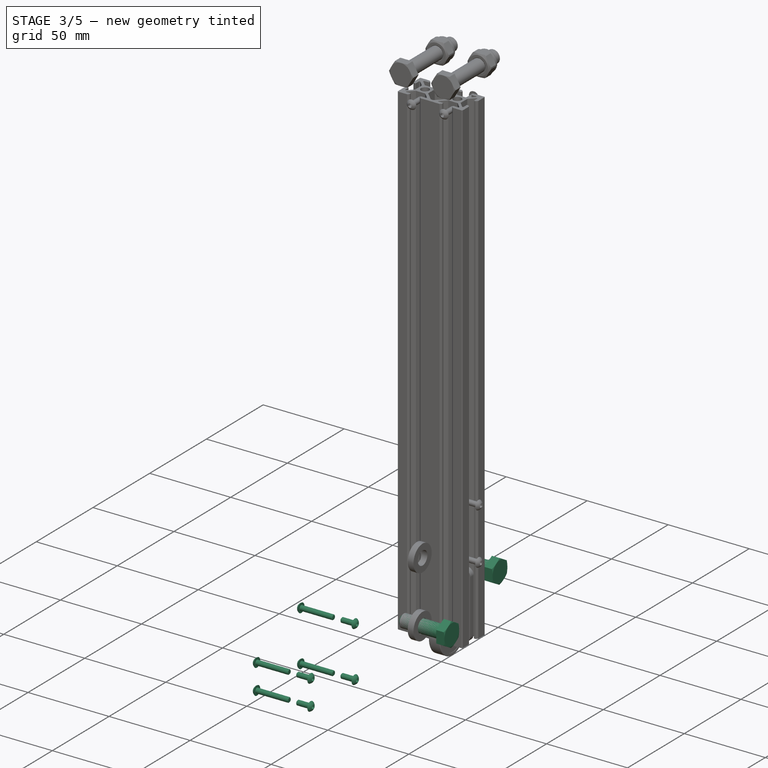
[diagram: stage 3 of 5 — iso view after this stage's code; geometry added in this stage tinted green]
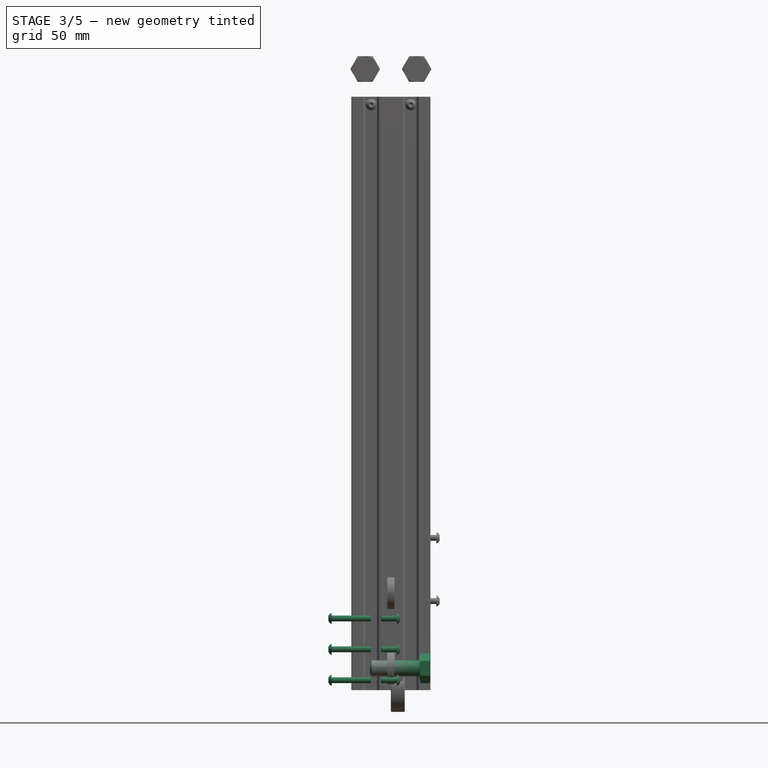
[diagram: stage 3 of 5 — front view after this stage's code; geometry added in this stage tinted green]
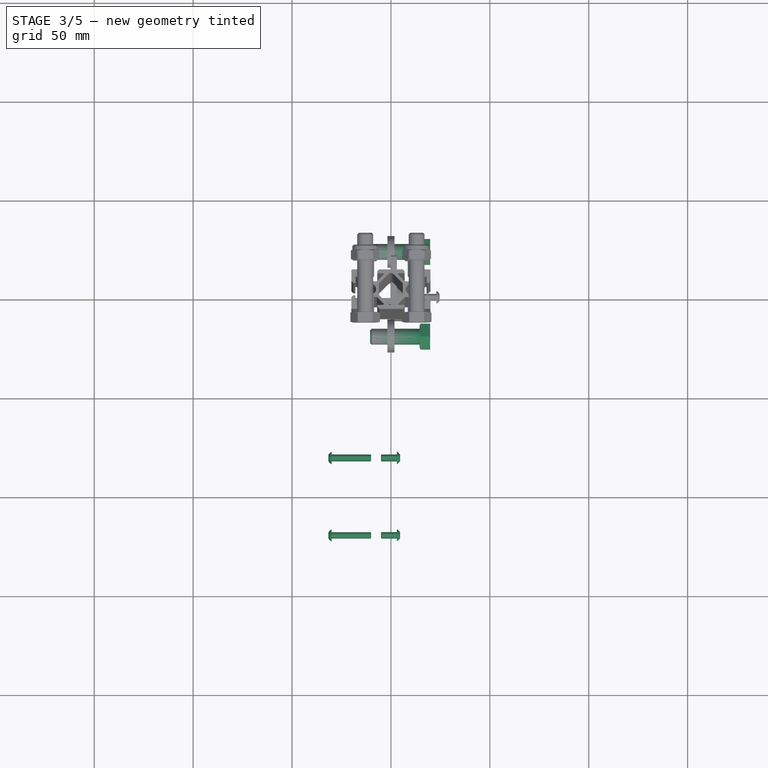
[diagram: stage 3 of 5 — top view after this stage's code; geometry added in this stage tinted green]
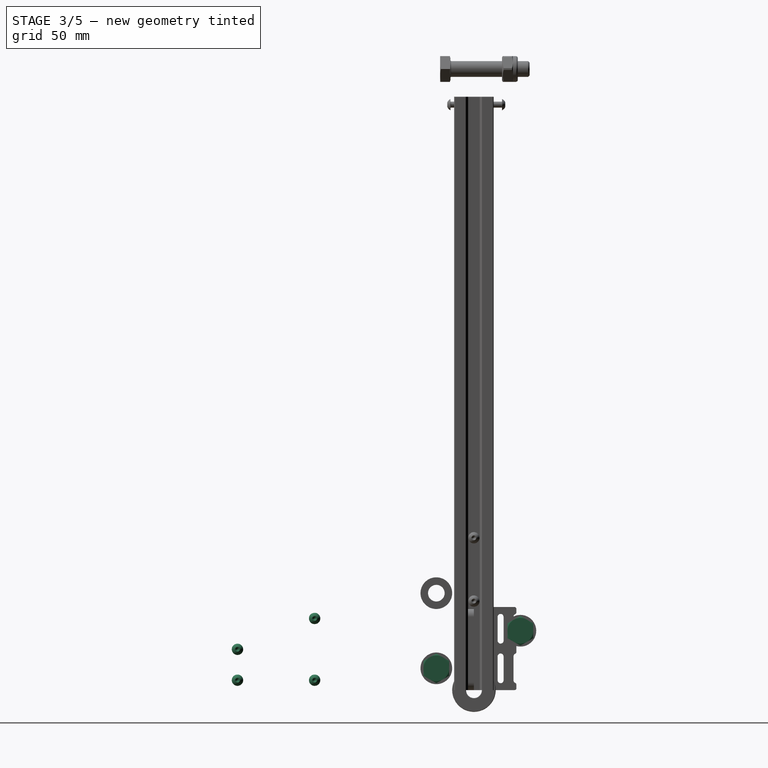
[diagram: stage 3 of 5 — right view after this stage's code; geometry added in this stage tinted green]
FEATURE [Part::FeaturePython] Screw004  label="M8x25-Screw010"  # Fasteners workbench fastener (typed FeaturePython)
  Placement = pos=(14.5,23.5,30) rot=(0,1,0;1.5708rad)
  diameter = 9
  invert = false
  length = 2
  lengthCustom = 25
  matchOuter = false
  offset = 0
  thread = false
  type = 29
FEATURE [Part::FeaturePython] Screw005  label="M8x25-Screw011"  # Fasteners workbench fastener (typed FeaturePython)
  Placement = pos=(14.5,-19,11) rot=(0,1,0;1.5708rad)
  diameter = 9
  invert = false
  length = 2
  lengthCustom = 25
  matchOuter = false
  offset = 0
  thread = false
  type = 29
FEATURE [Part::FeaturePython] Screw006  label="M3x8-Screw"  # Fasteners workbench fastener (typed FeaturePython)
  Placement = pos=(3,-80.5,5) rot=(0,1,0;1.5708rad)
  diameter = 1
  invert = false
  length = 1
  lengthCustom = 8
  matchOuter = false
  offset = 0
  thread = false
  type = 40
FEATURE [Part::FeaturePython] Screw007  label="M3x20-Screw"  # Fasteners workbench fastener (typed FeaturePython)
  Placement = pos=(-30,-80.552,4.99193) rot=(0,-1,0;1.5708rad)
  diameter = 1
  invert = false
  length = 6
  lengthCustom = 20
  matchOuter = false
  offset = 0
  thread = false
  type = 40
FEATURE [Part::FeaturePython] Screw008  label="M3x8-Screw004"  # Fasteners workbench fastener (typed FeaturePython)
  Placement = pos=(3,-119.5,5) rot=(0,1,0;1.5708rad)
  diameter = 1
  invert = false
  length = 1
  lengthCustom = 8
  matchOuter = false
  offset = 0
  thread = false
  type = 40
FEATURE [Part::FeaturePython] Screw009  label="M3x8-Screw005"  # Fasteners workbench fastener (typed FeaturePython)
  Placement = pos=(3,-80.5,36.2148) rot=(0,1,0;1.5708rad)
  diameter = 1
  invert = false
  length = 1
  lengthCustom = 8
  matchOuter = false
  offset = 0
  thread = false
  type = 40
FEATURE [Part::FeaturePython] Screw010  label="M3x8-Screw006"  # Fasteners workbench fastener (typed FeaturePython)
  Placement = pos=(3,-119.5,20.6148) rot=(0,1,0;1.5708rad)
  diameter = 1
  invert = false
  length = 1
  lengthCustom = 8
  matchOuter = false
  offset = 0
  thread = false
  type = 40
FEATURE [Part::FeaturePython] Screw011  label="M3x20-Screw004"  # Fasteners workbench fastener (typed FeaturePython)
  Placement = pos=(-30,-119.552,4.99193) rot=(0,-1,0;1.5708rad)
  diameter = 1
  invert = false
  length = 6
  lengthCustom = 20
  matchOuter = false
  offset = 0
  thread = false
  type = 40
FEATURE [Part::FeaturePython] Screw012  label="M3x20-Screw005"  # Fasteners workbench fastener (typed FeaturePython)
  Placement = pos=(-30,-119.552,20.6068) rot=(0,-1,0;1.5708rad)
  diameter = 1
  invert = false
  length = 6
  lengthCustom = 20
  matchOuter = false
  offset = 0
  thread = false
  type = 40
FEATURE [Part::FeaturePython] Screw013  label="M3x20-Screw006"  # Fasteners workbench fastener (typed FeaturePython)
  Placement = pos=(-30,-80.552,36.2068) rot=(0,-1,0;1.5708rad)
  diameter = 1
  invert = false
  length = 6
  lengthCustom = 20
  matchOuter = false
  offset = 0
  thread = false
  type = 40
FEATURE [PartDesign::Fillet] Fillet009
  AddSubType = 0
  Base = -> Fillet008 [Edge178,Edge184,Edge135,Edge3,Edge134,Edge133,Edge177,Edge169,Edge175,Edge166,Edge161,Edge160,Edge159,Edge168,Edge167,Edge140,Edge143,Edge149,Edge152,Edge158,Edge129,Edge131,Edge68]
  BaseFeature = -> Fillet008
  NewSolid = false
  Radius = 0.4
  Refine = true
  SupportTransform = false
  Suppress = false
FEATURE [PartDesign::Fillet] Fillet010
  AddSubType = 0
  Base = -> Fillet009 [Edge240,Edge218,Edge197,Edge221]
  BaseFeature = -> Fillet009
  NewSolid = false
  Radius = 0.5
  Refine = true
  SupportTransform = false
  Suppress = false
FEATURE [PartDesign::Chamfer] Chamfer002
  AddSubType = 0
  Angle = 45
  Base = -> Fillet010 [Edge187,Edge223,Edge175,Edge139,Edge135,Edge91,Edge97,Edge137,Edge149,Edge193,Edge197,Edge235]
  BaseFeature = -> Fillet010
  ChamferType = 0
  FlipDirection = false
  NewSolid = false
  Refine = true
  Size = 1
  Size2 = 1
  SupportTransform = false
  Suppress = false
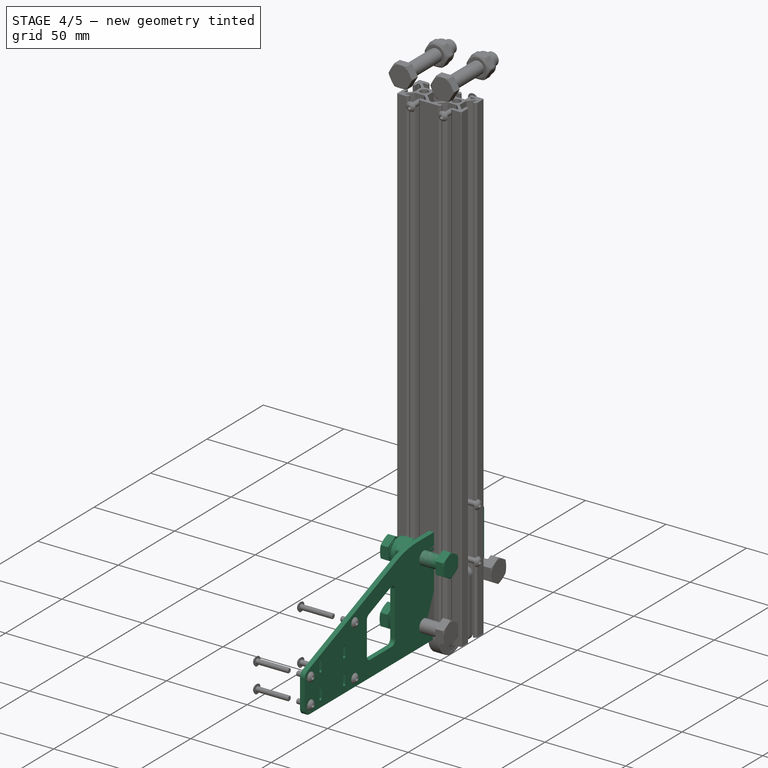
[diagram: stage 4 of 5 — iso view after this stage's code; geometry added in this stage tinted green]
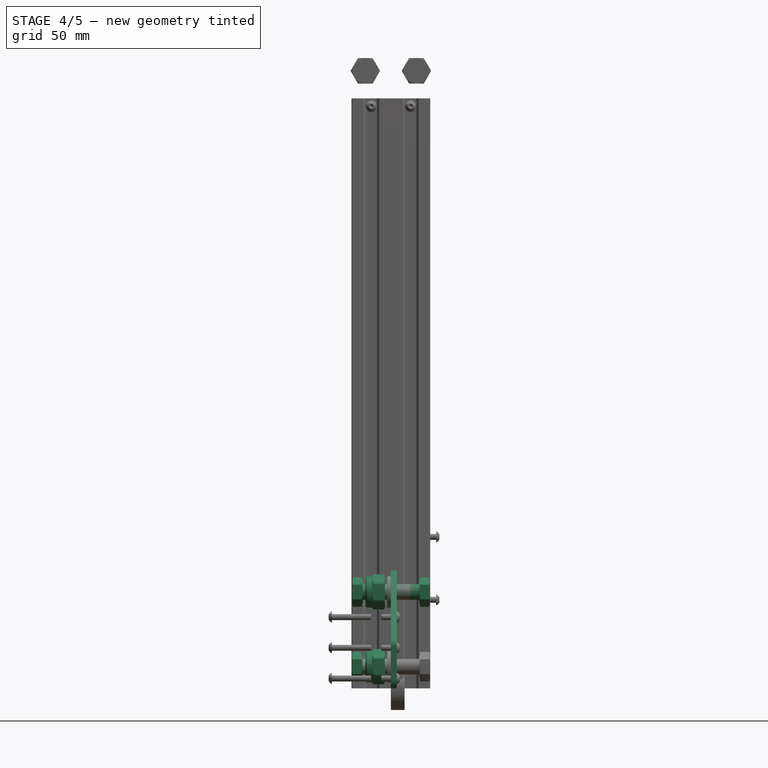
[diagram: stage 4 of 5 — front view after this stage's code; geometry added in this stage tinted green]
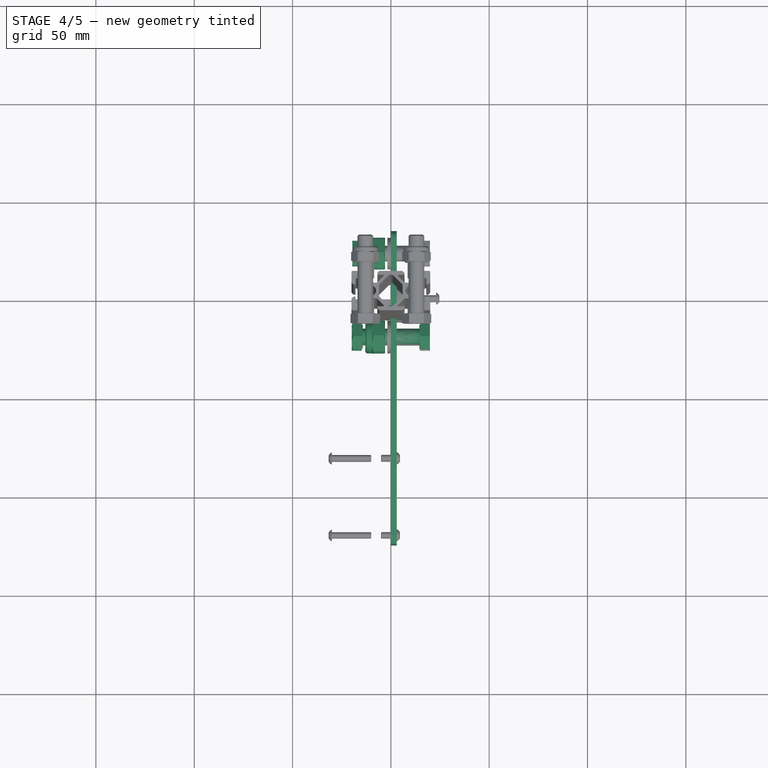
[diagram: stage 4 of 5 — top view after this stage's code; geometry added in this stage tinted green]
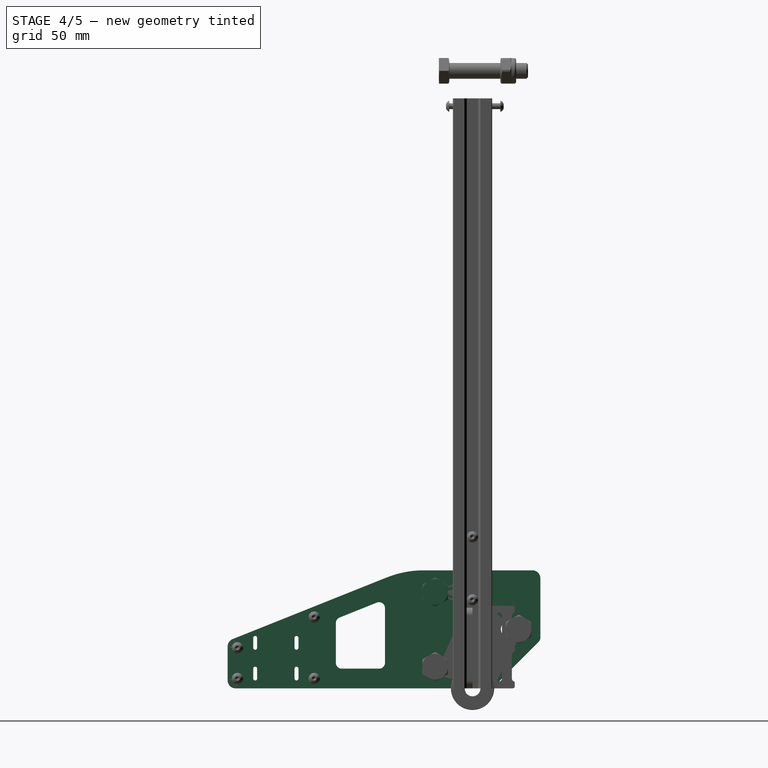
[diagram: stage 4 of 5 — right view after this stage's code; geometry added in this stage tinted green]
FEATURE [Sketcher::SketchObject] Sketch
  FullyConstrained = true
  MapMode = 5
  Placement = pos=(0,0,0) rot=(0.57735,0.57735,0.57735;2.0944rad)
  Support = -> [YZ_Plane]
  sketch-geometry (53):
    g0: LineSegment StartX=-124.5 StartY=0 StartZ=0 EndX=-124.5 EndY=24 EndZ=0
    g1: LineSegment StartX=-124.5 StartY=24 StartZ=0 EndX=-34.5 EndY=60 EndZ=0
    g2: LineSegment StartX=-34.5 StartY=60 StartZ=0 EndX=34.5 EndY=60 EndZ=0
    g3: LineSegment StartX=34.5 StartY=60 StartZ=0 EndX=34.5 EndY=24.5 EndZ=0
    g4: LineSegment StartX=34.5 StartY=24.5 StartZ=0 EndX=10 EndY=0 EndZ=0
    g5: LineSegment StartX=10 StartY=0 StartZ=0 EndX=-124.5 EndY=0 EndZ=0
    g6: LineSegment [constr] StartX=-109.5 StartY=0 StartZ=0 EndX=-109.5 EndY=30 EndZ=0
    g7: LineSegment [constr] StartX=-90.5 StartY=37.6 StartZ=0 EndX=-90.5 EndY=0 EndZ=0
    g8: LineSegment [constr] StartX=-100 StartY=0 StartZ=0 EndX=-100 EndY=33.8 EndZ=0
    g9: LineSegment [constr] StartX=10 StartY=0 StartZ=0 EndX=10 EndY=60 EndZ=0
    g10: LineSegment [constr] StartX=-10 StartY=60 StartZ=0 EndX=-10 EndY=0 EndZ=0
    g11: Circle [constr] CenterX=-19 CenterY=49 CenterZ=0 NormalX=0 NormalY=0 NormalZ=1 AngleXU=0 Radius=11
    g12: Circle [constr] CenterX=-19 CenterY=11 CenterZ=0 NormalX=0 NormalY=0 NormalZ=1 AngleXU=0 Radius=11
    g13: Circle CenterX=-19 CenterY=49 CenterZ=0 NormalX=0 NormalY=0 NormalZ=1 AngleXU=0 Radius=4.05
    g14: Circle CenterX=-19 CenterY=11 CenterZ=0 NormalX=0 NormalY=0 NormalZ=1 AngleXU=0 Radius=4.05
    g15: LineSegment [constr] StartX=-19 StartY=49 StartZ=0 EndX=-19 EndY=11 EndZ=0
    g16: LineSegment [constr] StartX=-19 StartY=30 StartZ=0 EndX=18.5 EndY=30 EndZ=0
    g17: ArcOfCircle CenterX=18.5 CenterY=30 CenterZ=0 NormalX=0 NormalY=0 NormalZ=1 AngleXU=0 Radius=4.05 StartAngle=1.5708 EndAngle=4.71239
    g18: ArcOfCircle CenterX=23.5 CenterY=30 CenterZ=0 NormalX=0 NormalY=0 NormalZ=1 AngleXU=0 Radius=4.05 StartAngle=4.71239 EndAngle=7.85398
    g19: LineSegment StartX=18.5 StartY=25.95 StartZ=0 EndX=23.5 EndY=25.95 EndZ=0
    g20: LineSegment StartX=18.5 StartY=34.05 StartZ=0 EndX=23.5 EndY=34.05 EndZ=0
    g21: LineSegment StartX=-69.5 StartY=10 StartZ=0 EndX=-69.5 EndY=35.2297 EndZ=0
    g22: LineSegment StartX=-69.5 StartY=35.2297 StartZ=0 EndX=-44.5 EndY=45.2297 EndZ=0
    g23: LineSegment StartX=-44.5 StartY=45.2297 StartZ=0 EndX=-44.5 EndY=10 EndZ=0
    g24: LineSegment StartX=-44.5 StartY=10 StartZ=0 EndX=-69.5 EndY=10 EndZ=0
    g25: Circle CenterX=-119.5 CenterY=20.6148 CenterZ=0 NormalX=0 NormalY=0 NormalZ=1 AngleXU=0 Radius=1.6
    g26: Circle CenterX=-119.5 CenterY=5 CenterZ=0 NormalX=0 NormalY=0 NormalZ=1 AngleXU=0 Radius=1.6
    g27: Circle CenterX=-80.5 CenterY=36.2148 CenterZ=0 NormalX=0 NormalY=0 NormalZ=1 AngleXU=0 Radius=1.6
    g28: Circle CenterX=-80.5 CenterY=5 CenterZ=0 NormalX=0 NormalY=0 NormalZ=1 AngleXU=0 Radius=1.6
    g29: ArcOfCircle CenterX=-110.5 CenterY=25.6148 CenterZ=0 NormalX=0 NormalY=0 NormalZ=1 AngleXU=0 Radius=1 StartAngle=1.9e-15 EndAngle=3.14159
    g30: ArcOfCircle CenterX=-110.5 CenterY=20.6148 CenterZ=0 NormalX=0 NormalY=0 NormalZ=1 AngleXU=0 Radius=1 StartAngle=3.14159 EndAngle=6.28319
    g31: LineSegment StartX=-111.5 StartY=25.6148 StartZ=0 EndX=-111.5 EndY=20.6148 EndZ=0
    g32: LineSegment StartX=-109.5 StartY=25.6148 StartZ=0 EndX=-109.5 EndY=20.6148 EndZ=0
    g33: ArcOfCircle CenterX=-110.5 CenterY=10 CenterZ=0 NormalX=0 NormalY=0 NormalZ=1 AngleXU=0 Radius=1 StartAngle=-9e-16 EndAngle=3.14159
    g34: ArcOfCircle CenterX=-110.5 CenterY=5 CenterZ=0 NormalX=0 NormalY=0 NormalZ=1 AngleXU=0 Radius=1 StartAngle=3.14159 EndAngle=6.28319
    g35: LineSegment StartX=-111.5 StartY=10 StartZ=0 EndX=-111.5 EndY=5 EndZ=0
    g36: LineSegment StartX=-109.5 StartY=10 StartZ=0 EndX=-109.5 EndY=5 EndZ=0
    g37: ArcOfCircle CenterX=-89.5 CenterY=25.6148 CenterZ=0 NormalX=0 NormalY=0 NormalZ=1 AngleXU=0 Radius=1 StartAngle=1e-15 EndAngle=3.14159
    g38: ArcOfCircle CenterX=-89.5 CenterY=20.6148 CenterZ=0 NormalX=0 NormalY=0 NormalZ=1 AngleXU=0 Radius=1 StartAngle=3.14159 EndAngle=6.28319
    g39: LineSegment StartX=-90.5 StartY=25.6148 StartZ=0 EndX=-90.5 EndY=20.6148 EndZ=0
    g40: LineSegment StartX=-88.5 StartY=25.6148 StartZ=0 EndX=-88.5 EndY=20.6148 EndZ=0
    g41: ArcOfCircle CenterX=-89.5 CenterY=10 CenterZ=0 NormalX=0 NormalY=0 NormalZ=1 AngleXU=0 Radius=1 StartAngle=-9e-16 EndAngle=3.14159
    g42: ArcOfCircle CenterX=-89.5 CenterY=5 CenterZ=0 NormalX=0 NormalY=0 NormalZ=1 AngleXU=0 Radius=1 StartAngle=3.14159 EndAngle=6.28319
    g43: LineSegment StartX=-90.5 StartY=10 StartZ=0 EndX=-90.5 EndY=5 EndZ=0
    g44: LineSegment StartX=-88.5 StartY=10 StartZ=0 EndX=-88.5 EndY=5 EndZ=0
    g45: LineSegment StartX=-3.5 StartY=55 StartZ=0 EndX=3.5 EndY=55 EndZ=0
    g46: LineSegment StartX=3.5 StartY=55 StartZ=0 EndX=3.5 EndY=52.5 EndZ=0
    g47: LineSegment StartX=3.5 StartY=52.5 StartZ=0 EndX=-3.5 EndY=52.5 EndZ=0
    g48: LineSegment StartX=-3.5 StartY=52.5 StartZ=0 EndX=-3.5 EndY=55 EndZ=0
    g49: LineSegment StartX=-3.5 StartY=44.5 StartZ=0 EndX=3.5 EndY=44.5 EndZ=0
    g50: LineSegment StartX=3.5 StartY=44.5 StartZ=0 EndX=3.5 EndY=42 EndZ=0
    g51: LineSegment StartX=3.5 StartY=42 StartZ=0 EndX=-3.5 EndY=42 EndZ=0
    g52: LineSegment StartX=-3.5 StartY=42 StartZ=0 EndX=-3.5 EndY=44.5 EndZ=0
  constraints (143):
    c: PointOnObject(g0,g-1)
    c: Vertical(g0)
    c: Coincident(g0,g1)
    c: Coincident(g1,g2)
    c: Coincident(g2,g3)
    c: Vertical(g3)
    c: Coincident(g3,g4)
    c: PointOnObject(g4,g-1)
    c: Coincident(g4,g5)
    c: Coincident(g5,g0)
    c: DistanceX(g-1,g4) = 10
    c: PointOnObject(g6,g5)
    c: PointOnObject(g6,g1)
    c: Vertical(g6)
    c: PointOnObject(g7,g1)
    c: PointOnObject(g7,g5)
    c: Vertical(g7)
    c: DistanceX(g6,g7) = 19
    c: PointOnObject(g8,g1)
    c: Vertical(g8)
    c: Symmetric(g6,g7,g8)
    c: DistanceX(g8,g-1) = 100
    c: DistanceX(g0,g6) = 15
    c: Symmetric(g2,g1,g-2)
    c: Angle(g4,g5) = 2.35619
    c: Coincident(g9,g4)
    c: PointOnObject(g9,g2)
    c: Vertical(g9)
    c: PointOnObject(g10,g5)
    c: Vertical(g10)
    c: Symmetric(g10,g9,g-2)
    c: Diameter(g11) = 22
    c: Equal(g11,g12)
    c: DistanceX(g11,g10) = 9
    c: Vertical(g12,g11)
    c: Coincident(g13,g11)
    c: Coincident(g14,g12)
    c: Diameter(g13) = 8.1
    c: Equal(g13,g14)
    c: Coincident(g15,g13)
    c: Coincident(g15,g14)
    c: Symmetric(g14,g13,g16)
    c: DistanceX(g9,g16) = 8.5
    c: Tangent(g17,g20) = 1.5708
    c: Tangent(g17,g19) = -1.5708
    c: Tangent(g19,g18) = -1.5708
    c: Tangent(g20,g18) = 1.5708
    c: Horizontal(g19)
    c: Equal(g17,g18)
    c: Coincident(g17,g16)
    c: Equal(g17,g13)
    c: DistanceX(g17,g18) = 5
    c: DistanceY(g13,g10) = 11
    c: Symmetric(g10,g10,g16)
    c: DistanceX(g18,g3) = 11
    c: DistanceY(g6,g6) = 30
    c: DistanceY(g1) = 60
    c: Vertical(g21)
    c: Coincident(g21,g22)
    c: Coincident(g22,g23)
    c: Vertical(g23)
    c: Coincident(g23,g24)
    c: Coincident(g24,g21)
    c: Horizontal(g24)
    c: DistanceY(g23) = 10
    c: Parallel(g22,g1)
    c: Distance(g22,g1) = 10
    c: DistanceX(g22,g1) = 10
    c: DistanceX(g24,g24) = 25
    c: Equal(g25,g26)
    c: Equal(g26,g27)
    c: Equal(g27,g28)
    c: Diameter(g27) = 3.2
    c: Vertical(g26,g25)
    c: Vertical(g28,g27)
    c: DistanceX(g0,g25) = 5
    c: DistanceY(g0,g26) = 5
    c: Distance(g25,g1) = 5
    c: Distance(g27,g1) = 5
    c: Symmetric(g26,g28,g8)
    c: Tangent(g29,g32) = 1.5708
    c: Tangent(g29,g31) = -1.5708
    c: Tangent(g31,g30) = -1.5708
    c: Tangent(g32,g30) = 1.5708
    c: Vertical(g31)
    c: Equal(g29,g30)
    c: Tangent(g33,g36) = 1.5708
    c: Tangent(g33,g35) = -1.5708
    c: Tangent(g35,g34) = -1.5708
    c: Tangent(g36,g34) = 1.5708
    c: Vertical(g35)
    c: Equal(g33,g34)
    c: Tangent(g37,g40) = 1.5708
    c: Tangent(g37,g39) = -1.5708
    c: Tangent(g39,g38) = -1.5708
    c: Tangent(g40,g38) = 1.5708
    c: Vertical(g39)
    c: Equal(g37,g38)
    c: Tangent(g41,g44) = 1.5708
    c: Tangent(g41,g43) = -1.5708
    c: Tangent(g43,g42) = -1.5708
    c: Tangent(g44,g42) = 1.5708
    c: Vertical(g43)
    c: Equal(g41,g42)
    c: Horizontal(g34,g42)
    c: Horizontal(g29,g37)
    c: Equal(g30,g38)
    c: Equal(g38,g41)
    c: Equal(g41,g33)
    c: PointOnObject(g41,g7)
    c: PointOnObject(g37,g7)
    c: PointOnObject(g29,g6)
    c: PointOnObject(g33,g6)
    c: Equal(g36,g32)
    c: Equal(g32,g39)
    c: Equal(g39,g43)
    c: DistanceY(g30,g29) = 5
    c: Horizontal(g34,g26)
    c: Horizontal(g30,g25)
    c: Diameter(g29) = 2
    c: Coincident(g45,g46)
    c: Coincident(g46,g47)
    c: Coincident(g47,g48)
    c: Coincident(g48,g45)
    c: Horizontal(g45)
    c: Horizontal(g47)
    c: Vertical(g46)
    c: Vertical(g48)
    c: Coincident(g49,g50)
    c: Coincident(g50,g51)
    c: Coincident(g51,g52)
    c: Coincident(g52,g49)
    c: Horizontal(g51)
    c: Vertical(g50)
    c: Vertical(g52)
    c: Symmetric(g49,g49,g-2)
    c: Vertical(g49,g46)
    c: Equal(g50,g46)
    c: DistanceX(g45,g45) = 7
    c: Vertical(g49,g47)
    c: DistanceY(g46,g46) = 2.5
    c: DistanceY(g45,g2) = 5
    c: DistanceY(g49,g46) = 8
FEATURE [PartDesign::Pad] Pad
  AddSubType = 0
  CheckUpToFaceLimits = true
  ClaimChildren = false
  Direction = (1,1,1)
  Fit = 0
  FitJoin = 0
  InnerFit = 0
  InnerFitJoin = 0
  InnerTaperAngle = 0
  InnerTaperAngleRev = 0
  Length = 3
  Length2 = 100
  Linearize = true
  NewSolid = false
  Placement = pos=(0,0,0) rot=(0.57735,0.57735,0.57735;2.0944rad)
  Profile = -> Sketch
  Refine = true
  Suppress = false
  Type = 0
  _ProfileBasedVersion = 1
FEATURE [PartDesign::Fillet] Fillet
  AddSubType = 0
  Base = -> Pad [Edge8,Edge2,Edge1]
  BaseFeature = -> Pad
  NewSolid = false
  Placement = pos=(0,0,0) rot=(0.57735,0.57735,0.57735;2.0944rad)
  Radius = 4
  Refine = true
  SupportTransform = false
  Suppress = false
FEATURE [PartDesign::Fillet] Fillet001
  AddSubType = 0
  Base = -> Fillet [Edge101,Edge99]
  BaseFeature = -> Fillet
  NewSolid = false
  Placement = pos=(0,0,0) rot=(0.57735,0.57735,0.57735;2.0944rad)
  Radius = 3
  Refine = true
  SupportTransform = false
  Suppress = false
FEATURE [PartDesign::Fillet] Fillet002
  AddSubType = 0
  Base = -> Fillet001 [Edge67]
  BaseFeature = -> Fillet001
  NewSolid = false
  Placement = pos=(0,0,0) rot=(0.57735,0.57735,0.57735;2.0944rad)
  Radius = 50
  Refine = true
  SupportTransform = false
  Suppress = false
FEATURE [PartDesign::Fillet] Fillet003
  AddSubType = 0
  Base = -> Fillet002 [Edge78,Edge80,Edge75,Edge76]
  BaseFeature = -> Fillet002
  NewSolid = false
  Placement = pos=(0,0,0) rot=(0.57735,0.57735,0.57735;2.0944rad)
  Radius = 3
  Refine = true
  SupportTransform = false
  Suppress = false
FEATURE [Part::FeaturePython] Screw  label="M8x25-Screw"  # Fasteners workbench fastener (typed FeaturePython)
  Placement = pos=(-14.3,23.5,30) rot=(0,-1,0;1.5708rad)
  diameter = 9
  invert = false
  length = 2
  lengthCustom = 25
  matchOuter = false
  offset = 0
  thread = false
  type = 29
FEATURE [Part::FeaturePython] Screw001  label="M8x25-Screw007"  # Fasteners workbench fastener (typed FeaturePython)
  Placement = pos=(-14.5895,-19,11) rot=(0,-1,0;1.5708rad)
  diameter = 9
  invert = false
  length = 2
  lengthCustom = 25
  matchOuter = false
  offset = 0
  thread = false
  type = 29
FEATURE [Part::FeaturePython] Screw002  label="M8x25-Screw008"  # Fasteners workbench fastener (typed FeaturePython)
  Placement = pos=(-14.3,-19,49) rot=(0,-1,0;1.5708rad)
  diameter = 9
  invert = false
  length = 2
  lengthCustom = 25
  matchOuter = false
  offset = 0
  thread = false
  type = 29
FEATURE [App::Link] Link014  label="Link014(Chariot)"
  AutoLinkLabel = true
  AutoPlacement = true
  LinkedObject = -> Body002
  SyncGroupVisibility = false
  _LinkVersion = 1
FEATURE [App::Link] Link015  label="Link015(Rondelle)"
  AutoLinkLabel = true
  AutoPlacement = true
  LinkPlacement = pos=(4.5,23.5,30) rot=(0,0,1;0rad)
  LinkedObject = -> Body001
  Placement = pos=(4.5,23.5,30) rot=(0,0,1;0rad)
  SyncGroupVisibility = false
  _LinkVersion = 1
FEATURE [App::Link] Link016  label="Link016(608ZZ)"
  AutoLinkLabel = true
  AutoPlacement = true
  LinkPlacement = pos=(7.5,-19,11) rot=(0,0,1;0rad)
  LinkedObject = -> Body007
  Placement = pos=(7.5,-19,11) rot=(0,0,1;0rad)
  SyncGroupVisibility = false
  _LinkVersion = 1
FEATURE [Part::FeaturePython] Nut003  label="M10-Nut006"  # Fasteners workbench fastener (typed FeaturePython)
  Placement = pos=(-3,-19,11) rot=(0,-1,0;1.5708rad)
  diameter = 7
  invert = false
  matchOuter = false
  offset = 0
  thread = false
  type = 5
FEATURE [Part::FeaturePython] Screw003  label="M8x25-Screw009"  # Fasteners workbench fastener (typed FeaturePython)
  Placement = pos=(14.5,-19,49) rot=(0,1,0;1.5708rad)
  diameter = 9
  invert = false
  length = 2
  lengthCustom = 25
  matchOuter = false
  offset = 0
  thread = false
  type = 29
FEATURE [App::Link] Link017  label="Link017(Rondelle)"
  AutoLinkLabel = true
  AutoPlacement = true
  LinkPlacement = pos=(1.5,-19,11) rot=(0,0,1;0rad)
  LinkedObject = -> Body001
  Placement = pos=(1.5,-19,11) rot=(0,0,1;0rad)
  SyncGroupVisibility = false
  _LinkVersion = 1
FEATURE [App::Link] Link018  label="Link018(Rondelle)"
  AutoLinkLabel = true
  AutoPlacement = true
  LinkPlacement = pos=(4.5,-19,11) rot=(0,0,1;0rad)
  LinkedObject = -> Body001
  Placement = pos=(4.5,-19,11) rot=(0,0,1;0rad)
  SyncGroupVisibility = false
  _LinkVersion = 1
FEATURE [App::Link] Link019  label="Link019(Rondelle)"
  AutoLinkLabel = true
  AutoPlacement = true
  LinkPlacement = pos=(1.5,-19,49) rot=(0,0,1;0rad)
  LinkedObject = -> Body001
  Placement = pos=(1.5,-19,49) rot=(0,0,1;0rad)
  SyncGroupVisibility = false
  _LinkVersion = 1
FEATURE [App::Link] Link020  label="Link020(Rondelle)"
  AutoLinkLabel = true
  AutoPlacement = true
  LinkPlacement = pos=(4.5,-19,49) rot=(0,0,1;0rad)
  LinkedObject = -> Body001
  Placement = pos=(4.5,-19,49) rot=(0,0,1;0rad)
  SyncGroupVisibility = false
  _LinkVersion = 1
FEATURE [App::Link] Link021  label="Link021(Rondelle)"
  AutoLinkLabel = true
  AutoPlacement = true
  LinkPlacement = pos=(1.5,23.5,30) rot=(0,0,1;0rad)
  LinkedObject = -> Body001
  Placement = pos=(1.5,23.5,30) rot=(0,0,1;0rad)
  SyncGroupVisibility = false
  _LinkVersion = 1
FEATURE [App::DocumentObjectGroup] Group003  label="Rondelles002"
  ExportMode = 1
  Group = -> [Link017,Link018,Link019,Link020,Link015,Link021]
  _GroupVersion = 1
FEATURE [App::Link] Link022  label="Link022(608ZZ)"
  AutoLinkLabel = true
  AutoPlacement = true
  LinkPlacement = pos=(7.5,23.5,30) rot=(0,0,1;0rad)
  LinkedObject = -> Body007
  Placement = pos=(7.5,23.5,30) rot=(0,0,1;0rad)
  SyncGroupVisibility = false
  _LinkVersion = 1
FEATURE [App::Link] Link023  label="Link023(608ZZ)"
  AutoLinkLabel = true
  AutoPlacement = true
  LinkPlacement = pos=(7.5,-19,49) rot=(0,0,1;0rad)
  LinkedObject = -> Body007
  Placement = pos=(7.5,-19,49) rot=(0,0,1;0rad)
  SyncGroupVisibility = false
  _LinkVersion = 1
FEATURE [App::DocumentObjectGroup] Group004  label="Roulements002"
  ExportMode = 1
  Group = -> [Link016,Link022,Link023]
  _GroupVersion = 1
FEATURE [App::DocumentObjectGroup] Group005  label="Roulements001"
  ExportMode = 1
  Group = -> [Link011,Link012,Link013]
  _GroupVersion = 1
FEATURE [Part::FeaturePython] Nut004  label="M10-Nut004"  # Fasteners workbench fastener (typed FeaturePython)
  Placement = pos=(-3,-19,49) rot=(0,-1,0;1.5708rad)
  diameter = 7
  invert = false
  matchOuter = false
  offset = 0
  thread = false
  type = 5
FEATURE [Part::FeaturePython] Nut005  label="M10-Nut005"  # Fasteners workbench fastener (typed FeaturePython)
  Placement = pos=(-3,23.5,30) rot=(0,-1,0;1.5708rad)
  diameter = 7
  invert = false
  matchOuter = false
  offset = 0
  thread = false
  type = 5
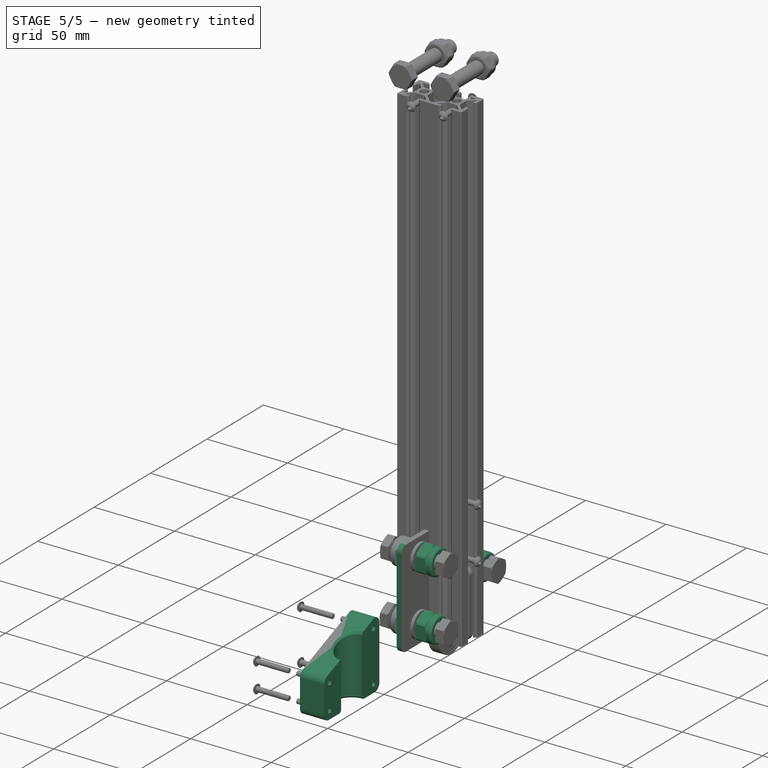
[diagram: stage 5 of 5 — iso view after this stage's code; geometry added in this stage tinted green]
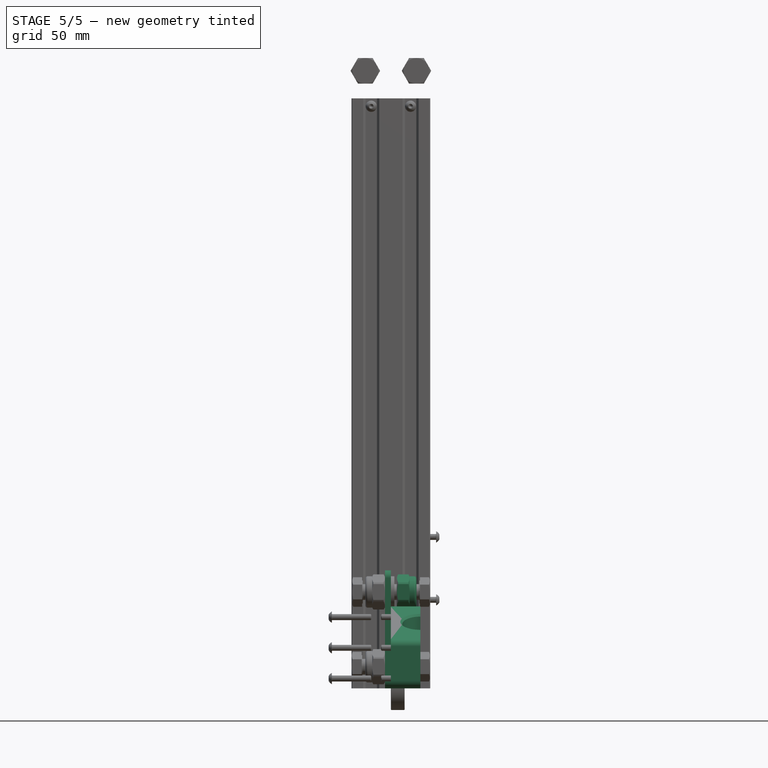
[diagram: stage 5 of 5 — front view after this stage's code; geometry added in this stage tinted green]
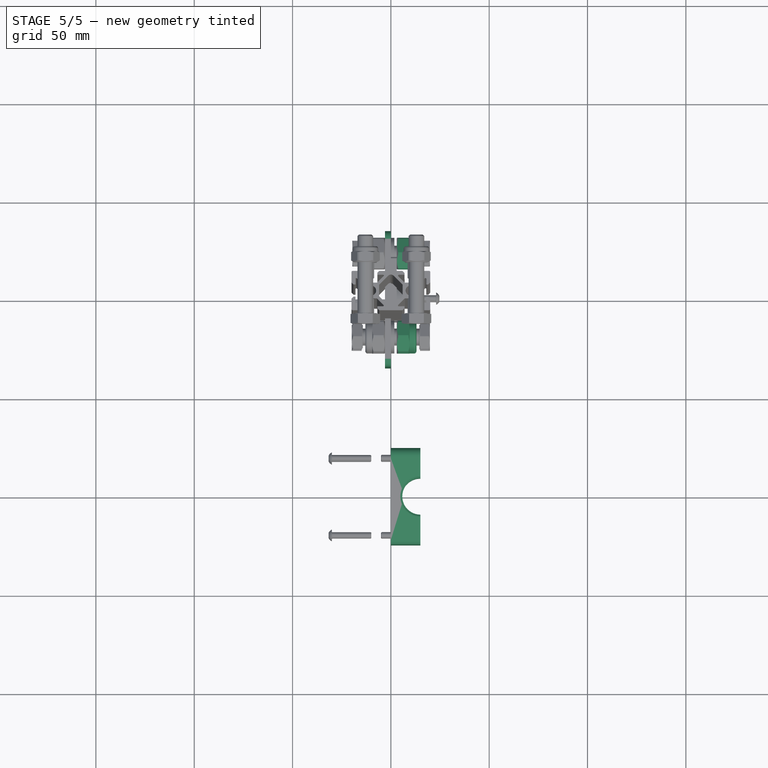
[diagram: stage 5 of 5 — top view after this stage's code; geometry added in this stage tinted green]
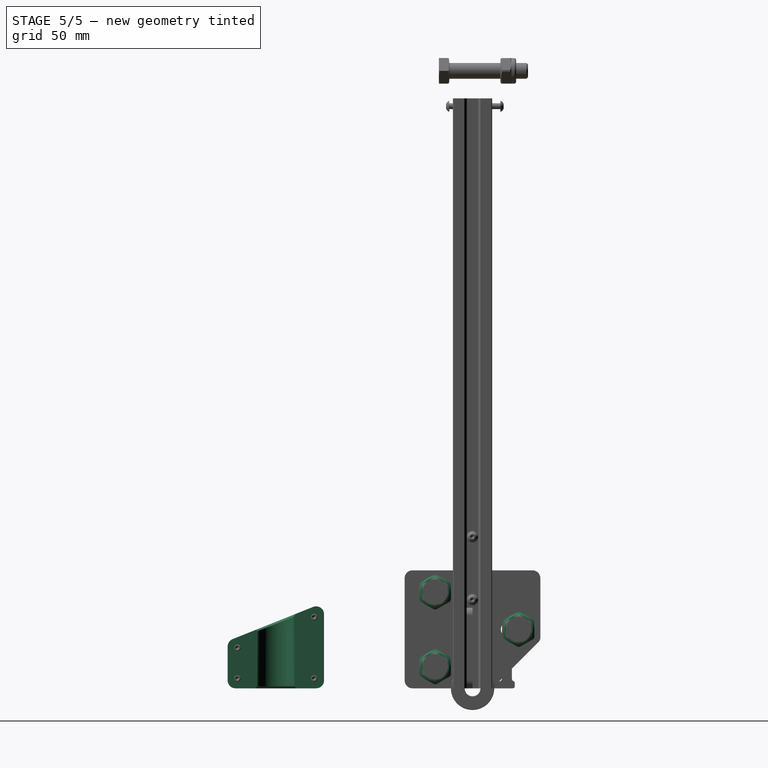
[diagram: stage 5 of 5 — right view after this stage's code; geometry added in this stage tinted green]
FEATURE [PartDesign::Body] Body001  label="Rondelle"
  AutoGroupSolids = false
  ExportMode = 0
  Group = -> [Sketch001,Pad001]
  Origin = -> Origin001
  SingleSolid = true
  Tip = -> Pad001
  _ExportChildren = -> [Pad001]
  _GroupVersion = 1
FEATURE [TechDraw::DrawSVGTemplate] Template001
  Height = 210
  Orientation = 1
  Width = 297
FEATURE [TechDraw::DrawProjGroupItem] ProjItem001  label="Front001"
  CoarseView = false
  Direction = (-1,0,0)
  Focus = 100
  HardHidden = false
  IsoCount = 0
  IsoHidden = false
  IsoVisible = false
  LockPosition = true
  Perspective = false
  Rotation = 0
  RotationVector = (0,-1,0)
  ScaleType = 2
  SeamHidden = false
  SeamVisible = true
  SmoothHidden = false
  SmoothVisible = true
  Source = -> [Pad001]
  Type = 0
  X = 0
  XDirection = (0,-1,0)
  Y = 0
FEATURE [TechDraw::DrawProjGroup] ProjGroup001
  Anchor = -> ProjItem001
  AutoDistribute = true
  LockPosition = false
  ProjectionType = 0
  Rotation = 0
  ScaleType = 0
  Source = -> [Pad001]
  Views = -> [ProjItem001]
  X = 9.31363
  Y = 201.243
  spacingX = 15
  spacingY = 15
FEATURE [TechDraw::DrawPage] Page001  label="laser3mmRondelle"
  KeepUpdated = true
  NextBalloonIndex = 1
  ProjectionType = 0
  Template = -> Template001
  Views = -> [ProjGroup001]
FEATURE [PartDesign::SubShapeBinder] Binder  label="Binder(Fillet003)"
  BindCopyOnChange = 0
  BindMode = 0
  ClaimChildren = false
  Context = -> Body002 [Binder.]
  FillStyle = 0
  Fuse = false
  MakeFace = true
  PartialLoad = false
  Relative = true
  Support = -> [Body[Fillet003.Face1]]
  _Version = 8
FEATURE [Sketcher::SketchObject] Sketch002
  ExternalGeometry = -> [Binder]
  FullyConstrained = true
  MapMode = 5
  Placement = pos=(0,0,0) rot=(0.57735,0.57735,0.57735;2.0944rad)
  Support = -> [YZ_Plane002]
  sketch-geometry (8):
    g0: LineSegment StartX=8.75736 StartY=0 StartZ=0 EndX=-34.5 EndY=0 EndZ=0
    g1: LineSegment StartX=-34.5 StartY=0 StartZ=0 EndX=-34.5 EndY=60 EndZ=0
    g2: LineSegment StartX=-34.5 StartY=60 StartZ=0 EndX=30.5 EndY=60 EndZ=0
    g3: GeomPoint [constr] X=-34.5 Y=56 Z=0
    g4: LineSegment StartX=-3.5 StartY=34 StartZ=0 EndX=3.5 EndY=34 EndZ=0
    g5: LineSegment StartX=3.5 StartY=34 StartZ=0 EndX=3.5 EndY=31.5 EndZ=0
    g6: LineSegment StartX=3.5 StartY=31.5 StartZ=0 EndX=-3.5 EndY=31.5 EndZ=0
    g7: LineSegment StartX=-3.5 StartY=31.5 StartZ=0 EndX=-3.5 EndY=34 EndZ=0
  constraints (19):
    c: Coincident(g0,g-21)
    c: PointOnObject(g0,g-1)
    c: Coincident(g1,g0)
    c: Coincident(g2,g1)
    c: Coincident(g2,g-18)
    c: Horizontal(g2)
    c: PointOnObject(g3,g1)
    c: Symmetric(g3,g-18,g-2)
    c: Vertical(g1)
    c: Coincident(g4,g5)
    c: Coincident(g5,g6)
    c: Coincident(g6,g7)
    c: Coincident(g7,g4)
    c: Horizontal(g6)
    c: Vertical(g5)
    c: Vertical(g7)
    c: Equal(g5,g-12)
    c: Symmetric(g4,g4,g-2)
    c: Symmetric(g4,g-16,g-12)
FEATURE [PartDesign::Pad] Pad002
  AddSubType = 0
  CheckUpToFaceLimits = true
  ClaimChildren = false
  Direction = (1,1,1)
  Fit = 0
  FitJoin = 0
  InnerFit = 0
  InnerFitJoin = 0
  InnerTaperAngle = 0
  InnerTaperAngleRev = 0
  Length = 3
  Length2 = 100
  Linearize = true
  NewSolid = false
  Placement = pos=(0,0,0) rot=(0.57735,0.57735,0.57735;2.0944rad)
  Profile = -> Sketch002
  Refine = true
  Reversed = true
  Suppress = false
  Type = 0
  _ProfileBasedVersion = 1
FEATURE [PartDesign::Fillet] Fillet004
  AddSubType = 0
  Base = -> Pad002 [Edge5,Edge2]
  BaseFeature = -> Pad002
  NewSolid = false
  Placement = pos=(0,0,0) rot=(0.57735,0.57735,0.57735;2.0944rad)
  Radius = 4
  Refine = true
  SupportTransform = false
  Suppress = false
FEATURE [PartDesign::Body] Body004  label="GuideCable"
  AutoGroupSolids = false
  ExportMode = 0
  Group = -> [Sketch004,Pad004,Fillet006]
  Origin = -> Origin004
  SingleSolid = true
  Tip = -> Fillet006
  _ExportChildren = -> [Pad004,Fillet006]
  _GroupVersion = 1
FEATURE [TechDraw::DrawSVGTemplate] Template003
  Height = 210
  Orientation = 1
  Width = 297
FEATURE [TechDraw::DrawProjGroupItem] ProjItem005  label="Front005"
  CoarseView = false
  Direction = (1,0,0)
  Focus = 100
  HardHidden = false
  IsoCount = 0
  IsoHidden = false
  IsoVisible = false
  LockPosition = true
  Perspective = false
  Rotation = 0
  RotationVector = (0,-1,0)
  ScaleType = 2
  SeamHidden = false
  SeamVisible = true
  SmoothHidden = false
  SmoothVisible = true
  Source = -> [Fillet006]
  Type = 0
  X = 0
  XDirection = (0,-1,0)
  Y = 0
FEATURE [TechDraw::DrawProjGroup] ProjGroup005
  Anchor = -> ProjItem005
  AutoDistribute = true
  LockPosition = false
  ProjectionType = 0
  Rotation = 0
  ScaleType = 0
  Source = -> [Fillet006]
  Views = -> [ProjItem005]
  X = 18.3298
  Y = 187.213
  spacingX = 15
  spacingY = 15
FEATURE [TechDraw::DrawPage] Page003  label="laser3mmGuideCable"
  KeepUpdated = true
  NextBalloonIndex = 1
  ProjectionType = 0
  Template = -> Template003
  Views = -> [ProjGroup005]
FEATURE [App::DocumentObjectGroup] Group001  label="Plans"
  ExportMode = 1
  Group = -> [Page,Page001,Page002,Page003]
  _GroupVersion = 1
FEATURE [PartDesign::SubShapeBinder] Binder001  label="Binder001(Fillet003)"
  BindCopyOnChange = 0
  BindMode = 0
  ClaimChildren = false
  Context = -> Body005 [Binder001.]
  FillStyle = 0
  Fuse = false
  MakeFace = true
  PartialLoad = false
  Relative = true
  Support = -> [Body[Fillet003.Face1]]
  _Version = 8
FEATURE [Part::SubShapeBinder] Import  label="Import(Fillet003)"
  BindCopyOnChange = 0
  BindMode = 0
  ClaimChildren = false
  Context = -> Body005 [Import.]
  FillStyle = 0
  Fuse = false
  MakeFace = false
  PartialLoad = false
  Relative = true
  Support = -> [Body[Fillet003.]]
  _Version = 8
FEATURE [Sketcher::SketchObject] Sketch005
  ExternalGeometry = -> [Import,Binder001]
  FullyConstrained = true
  MapMode = 5
  Placement = pos=(0,0,0) rot=(-0.57735,0.57735,0.57735;4.18879rad)
  Support = -> [YZ_Plane005]
  sketch-geometry (9):
    g0: LineSegment [constr] StartX=100 StartY=33.8 StartZ=0 EndX=100 EndY=-2.84e-14 EndZ=0
    g1: Circle CenterX=80.5 CenterY=36.2148 CenterZ=0 NormalX=0 NormalY=0 NormalZ=1 AngleXU=0 Radius=1.6
    g2: Circle CenterX=80.5 CenterY=5 CenterZ=0 NormalX=0 NormalY=0 NormalZ=1 AngleXU=0 Radius=1.6
    g3: Circle CenterX=119.5 CenterY=5 CenterZ=0 NormalX=0 NormalY=0 NormalZ=1 AngleXU=0 Radius=1.6
    g4: Circle CenterX=119.5 CenterY=20.6148 CenterZ=0 NormalX=0 NormalY=0 NormalZ=1 AngleXU=0 Radius=1.6
    g5: LineSegment StartX=75.5 StartY=43.6 StartZ=0 EndX=75.5 EndY=-2.13e-14 EndZ=0
    g6: GeomPoint [constr] X=75.5 Y=4 Z=0
    g7: LineSegment StartX=75.5 StartY=43.6 StartZ=0 EndX=121.986 EndY=25.0058 EndZ=0
    g8: LineSegment StartX=120.5 StartY=0 StartZ=0 EndX=75.5 EndY=-2.13e-14 EndZ=0
  constraints (20):
    c: PointOnObject(g0,g-9)
    c: PointOnObject(g0,g-10)
    c: Symmetric(g-4,g-6,g0)
    c: Coincident(g1,g-3)
    c: Coincident(g2,g-4)
    c: Coincident(g3,g-6)
    c: Coincident(g4,g-5)
    c: Diameter(g1) = 3.2
    c: Equal(g1,g2)
    c: Equal(g1,g4)
    c: Equal(g1,g3)
    c: PointOnObject(g5,g-9)
    c: PointOnObject(g5,g-10)
    c: Vertical(g5)
    c: PointOnObject(g6,g5)
    c: Symmetric(g6,g-11,g0)
    c: Coincident(g7,g5)
    c: Coincident(g7,g-9)
    c: Coincident(g8,g-11)
    c: Coincident(g8,g5)
FEATURE [PartDesign::Pad] Pad005
  AddSubType = 0
  CheckUpToFaceLimits = true
  ClaimChildren = false
  Direction = (1,1,1)
  Fit = 0
  FitJoin = 0
  InnerFit = 0
  InnerFitJoin = 0
  InnerTaperAngle = 0
  InnerTaperAngleRev = 0
  Length = 15
  Length2 = 100
  Linearize = true
  NewSolid = false
  Placement = pos=(0,0,0) rot=(0.57735,0.57735,0.57735;2.0944rad)
  Profile = -> Sketch005
  Refine = true
  Suppress = false
  Type = 0
  _ProfileBasedVersion = 1
FEATURE [Sketcher::SketchObject] Sketch006
  ExternalGeometry = -> [Pad005]
  FullyConstrained = true
  MapMode = 5
  Placement = pos=(-15,5.6e-15,-3.5e-15) rot=(-0.57735,-0.57735,0.57735;2.0944rad)
  Support = -> [Pad005]
  sketch-geometry (6):
    g0: LineSegment StartX=-100 StartY=0 StartZ=0 EndX=-100 EndY=-33.8 EndZ=0
    g1: GeomPoint [constr] X=-75.5 Y=-4 Z=0
    g2: LineSegment StartX=-100 StartY=0 StartZ=0 EndX=-90.5 EndY=0 EndZ=0
    g3: LineSegment StartX=-90.5 StartY=0 StartZ=0 EndX=-90.8512 EndY=-37.4595 EndZ=0
    g4: LineSegment StartX=-90.8512 StartY=-37.4595 StartZ=0 EndX=-100 EndY=-33.8 EndZ=0
    g5: LineSegment [constr] StartX=-100 StartY=-32 StartZ=0 EndX=-90.8 EndY=-32 EndZ=0
  constraints (17):
    c: PointOnObject(g0,g-1)
    c: Vertical(g0)
    c: PointOnObject(g0,g-3)
    c: PointOnObject(g1,g-5)
    c: Symmetric(g-4,g1,g0)
    c: Coincident(g2,g0)
    c: PointOnObject(g2,g-1)
    c: Coincident(g3,g2)
    c: PointOnObject(g3,g-3)
    c: Coincident(g4,g3)
    c: Coincident(g4,g0)
    c: DistanceX(g2,g2) = 9.5
    c: PointOnObject(g5,g0)
    c: PointOnObject(g5,g3)
    c: Horizontal(g5)
    c: DistanceY(g5,g0) = 32
    c: DistanceX(g5,g5) = 9.2
FEATURE [PartDesign::Line] DatumLine
  AttacherType = Attacher::AttachEngineLine
  Length = 60
  MapMode = 29
  MinimumLength = 10
  Placement = pos=(-15,-100,-3.5e-15) rot=(0,0,1;0rad)
  ResizeMode = 0
  Support = -> [Sketch006]
FEATURE [PartDesign::Groove] Groove
  AddSubType = 1
  Angle = 360
  Axis = (-4e-16,0,1)
  Base = (-15,-100,-5.1e-15)
  BaseFeature = -> Pad005
  ClaimChildren = false
  Fit = 0
  FitJoin = 0
  InnerFit = 0
  InnerFitJoin = 0
  NewSolid = false
  Placement = pos=(0,0,0) rot=(0.57735,0.57735,0.57735;2.0944rad)
  Profile = -> Sketch006
  ReferenceAxis = -> DatumLine
  Refine = true
  Reversed = true
  Suppress = false
  _ProfileBasedVersion = 1
FEATURE [PartDesign::Chamfer] Chamfer
  AddSubType = 0
  Angle = 45
  Base = -> Groove [Edge25,Edge26]
  BaseFeature = -> Groove
  ChamferType = 0
  FlipDirection = false
  NewSolid = false
  Placement = pos=(0,0,0) rot=(0.57735,0.57735,0.57735;2.0944rad)
  Refine = true
  Size = 1
  Size2 = 1
  SupportTransform = false
  Suppress = false
FEATURE [PartDesign::Fillet] Fillet007
  AddSubType = 0
  Base = -> Chamfer [Edge15,Edge29]
  BaseFeature = -> Chamfer
  NewSolid = false
  Placement = pos=(0,0,0) rot=(0.57735,0.57735,0.57735;2.0944rad)
  Radius = 4
  Refine = true
  SupportTransform = false
  Suppress = false
FEATURE [Sketcher::SketchObject] Sketch007
  ExternalGeometry = -> [Fillet007]
  FullyConstrained = true
  MapMode = 5
  Placement = pos=(-5.6e-15,0,0) rot=(0.57735,0.57735,0.57735;2.0944rad)
  Support = -> [Fillet007]
  sketch-geometry (4):
    g0: Circle CenterX=-119.5 CenterY=20.6148 CenterZ=0 NormalX=0 NormalY=0 NormalZ=1 AngleXU=0 Radius=2.1
    g1: Circle CenterX=-119.5 CenterY=5 CenterZ=0 NormalX=0 NormalY=0 NormalZ=1 AngleXU=0 Radius=2.1
    g2: Circle CenterX=-80.5 CenterY=5 CenterZ=0 NormalX=0 NormalY=0 NormalZ=1 AngleXU=0 Radius=2.1
    g3: Circle CenterX=-80.5 CenterY=36.2148 CenterZ=0 NormalX=0 NormalY=0 NormalZ=1 AngleXU=0 Radius=2.1
  constraints (8):
    c: Coincident(g0,g-3)
    c: Coincident(g1,g-4)
    c: Coincident(g2,g-5)
    c: Coincident(g3,g-6)
    c: Diameter(g3) = 4.2
    c: Equal(g3,g0)
    c: Equal(g3,g1)
    c: Equal(g3,g2)
FEATURE [PartDesign::Pocket] Pocket
  AddSubType = 1
  BaseFeature = -> Fillet007
  CheckUpToFaceLimits = true
  ClaimChildren = false
  Fit = 0
  FitJoin = 0
  InnerFit = 0
  InnerFitJoin = 0
  InnerTaperAngle = 0
  InnerTaperAngleRev = 0
  Length = 5
  Length2 = 100
  Linearize = true
  NewSolid = false
  Placement = pos=(0,0,0) rot=(0.57735,0.57735,0.57735;2.0944rad)
  Profile = -> Sketch007
  Refine = true
  Suppress = false
  Type = 1
  _ProfileBasedVersion = 1
  _Version = 1
FEATURE [PartDesign::Body] Body005  label="MorsDroit"
  AutoGroupSolids = false
  ExportMode = 0
  Group = -> [Binder001,Sketch005,Import,Pad005,Sketch006,DatumLine,Groove,Chamfer,Fillet007,Sketch007,Pocket]
  Origin = -> Origin005
  SingleSolid = true
  Tip = -> Pocket
  _ExportChildren = -> [Binder001,Import,Pad005,DatumLine,Groove,Chamfer,Fillet007,Pocket]
  _GroupVersion = 1
FEATURE [Part::Mirroring] Part__Mirroring  label="MorsDroit (Mirror #1)"
  Base = (0,0,0)
  Normal = (1,0,0)
  Source = -> Body005
FEATURE [PartDesign::FeatureBase] BaseFeature
  BaseFeature = -> Part__Mirroring
  NewSolid = false
  Suppress = false
FEATURE [Sketcher::SketchObject] Sketch008
  ExternalGeometry = -> [BaseFeature]
  FullyConstrained = true
  MapMode = 5
  Placement = pos=(-1.008e-13,0,0) rot=(0.57735,-0.57735,-0.57735;2.0944rad)
  Support = -> [BaseFeature]
  sketch-geometry (4):
    g0: Circle CenterX=80.5 CenterY=36.2148 CenterZ=0 NormalX=0 NormalY=0 NormalZ=1 AngleXU=0 Radius=1.6
    g1: Circle CenterX=80.5 CenterY=5 CenterZ=0 NormalX=0 NormalY=0 NormalZ=1 AngleXU=0 Radius=1.6
    g2: Circle CenterX=119.5 CenterY=5 CenterZ=0 NormalX=0 NormalY=0 NormalZ=1 AngleXU=0 Radius=1.6
    g3: Circle CenterX=119.5 CenterY=20.6148 CenterZ=0 NormalX=0 NormalY=0 NormalZ=1 AngleXU=0 Radius=1.6
  constraints (8):
    c: Coincident(g0,g-3)
    c: Coincident(g1,g-4)
    c: Coincident(g2,g-5)
    c: Coincident(g3,g-6)
    c: Diameter(g3) = 3.2
    c: Equal(g3,g2)
    c: Equal(g3,g1)
    c: Equal(g3,g0)
FEATURE [PartDesign::Pad] Pad006
  AddSubType = 0
  BaseFeature = -> BaseFeature
  CheckUpToFaceLimits = true
  ClaimChildren = false
  Direction = (1,1,1)
  Fit = 0
  FitJoin = 0
  InnerFit = 0
  InnerFitJoin = 0
  InnerTaperAngle = 0
  InnerTaperAngleRev = 0
  Length = 10
  Length2 = 100
  Linearize = true
  NewSolid = false
  Profile = -> Sketch008
  Refine = true
  Reversed = true
  Suppress = false
  Type = 3
  UpToFace = -> BaseFeature [Face2]
  _ProfileBasedVersion = 1
FEATURE [PartDesign::Body] Body007  label="608ZZ"
  AutoGroupSolids = false
  ExportMode = 0
  Group = -> [Sketch009,Revolution,Chamfer001]
  Origin = -> Origin009
  SingleSolid = true
  Tip = -> Chamfer001
  _ExportChildren = -> [Revolution,Chamfer001]
  _GroupVersion = 1
FEATURE [App::Link] Link011  label="Link011(608ZZ)"
  AutoLinkLabel = true
  AutoPlacement = true
  LinkPlacement = pos=(-14.5,-19,49) rot=(0,0,1;0rad)
  LinkedObject = -> Body007
  Placement = pos=(-14.5,-19,49) rot=(0,0,1;0rad)
  SyncGroupVisibility = false
  _LinkVersion = 1
FEATURE [App::Link] Link012  label="Link012(608ZZ)"
  AutoLinkLabel = true
  AutoPlacement = true
  LinkPlacement = pos=(-14.5,-19,11) rot=(0,0,1;0rad)
  LinkedObject = -> Body007
  Placement = pos=(-14.5,-19,11) rot=(0,0,1;0rad)
  SyncGroupVisibility = false
  _LinkVersion = 1
FEATURE [App::Link] Link013  label="Link013(608ZZ)"
  AutoLinkLabel = true
  AutoPlacement = true
  LinkPlacement = pos=(-14.5,23.5,30) rot=(0,0,1;0rad)
  LinkedObject = -> Body007
  Placement = pos=(-14.5,23.5,30) rot=(0,0,1;0rad)
  SyncGroupVisibility = false
  _LinkVersion = 1
FEATURE [Part::FeaturePython] Nut  label="M10-Nut"  # Fasteners workbench fastener (typed FeaturePython)
  Placement = pos=(3,-19,49) rot=(0,1,0;1.5708rad)
  baseObject = -> Body [Edge104]
  diameter = 7
  invert = false
  matchOuter = false
  offset = 0
  thread = false
  type = 5
FEATURE [Part::FeaturePython] Nut001  label="M10-Nut001"  # Fasteners workbench fastener (typed FeaturePython)
  Placement = pos=(3,-19,11) rot=(0,1,0;1.5708rad)
  baseObject = -> Body [Edge106]
  diameter = 7
  invert = false
  matchOuter = false
  offset = 0
  thread = false
  type = 5
FEATURE [Part::FeaturePython] Nut002  label="M10-Nut002"  # Fasteners workbench fastener (typed FeaturePython)
  Placement = pos=(3,23.5,30) rot=(0,1,0;1.5708rad)
  baseObject = -> Body [Edge101]
  diameter = 7
  invert = false
  matchOuter = false
  offset = 0
  thread = false
  type = 5
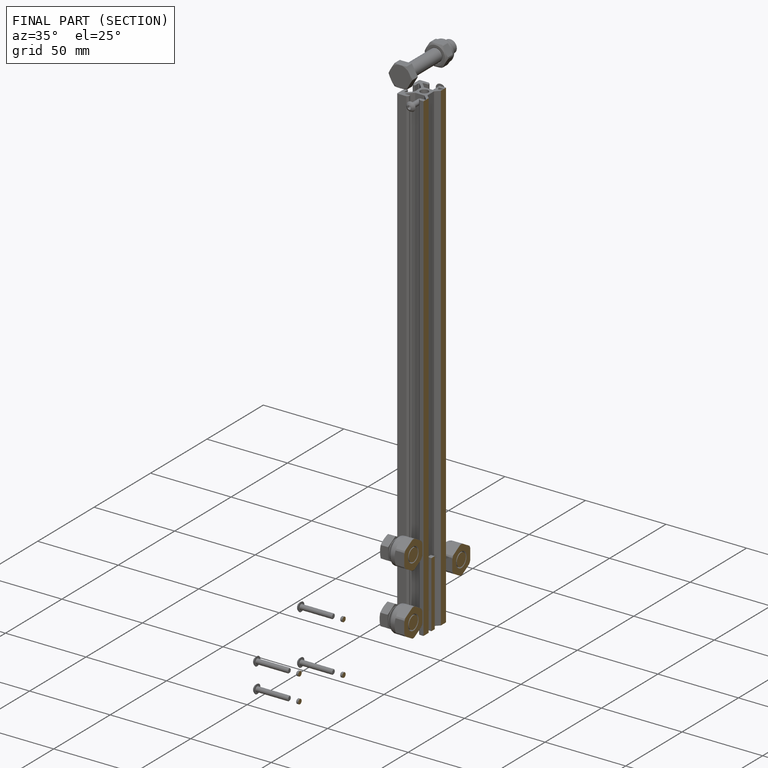
[diagram: finished part — half-section view (interior)]
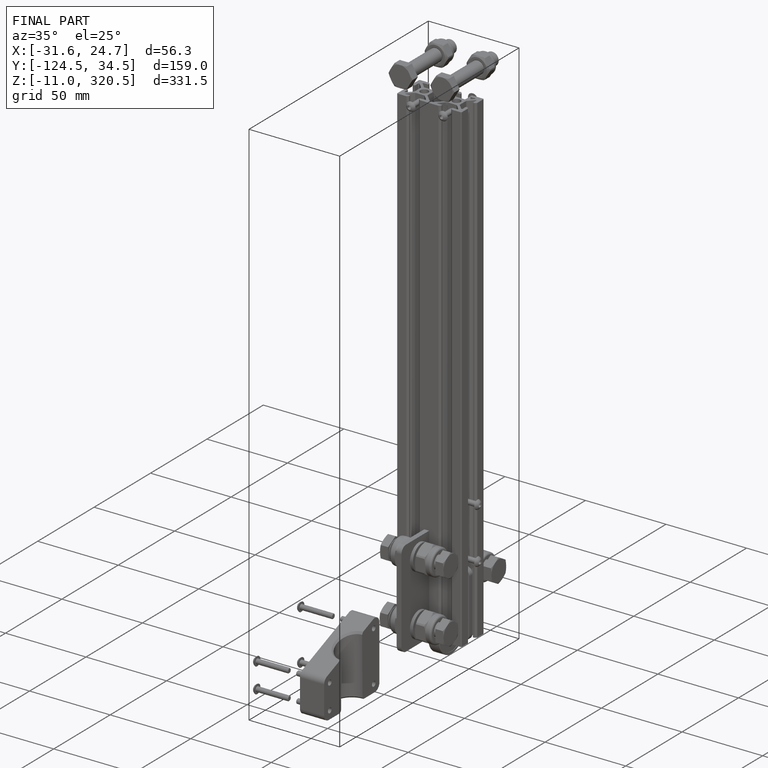
[diagram: finished part — iso view with bounding-box wireframe]
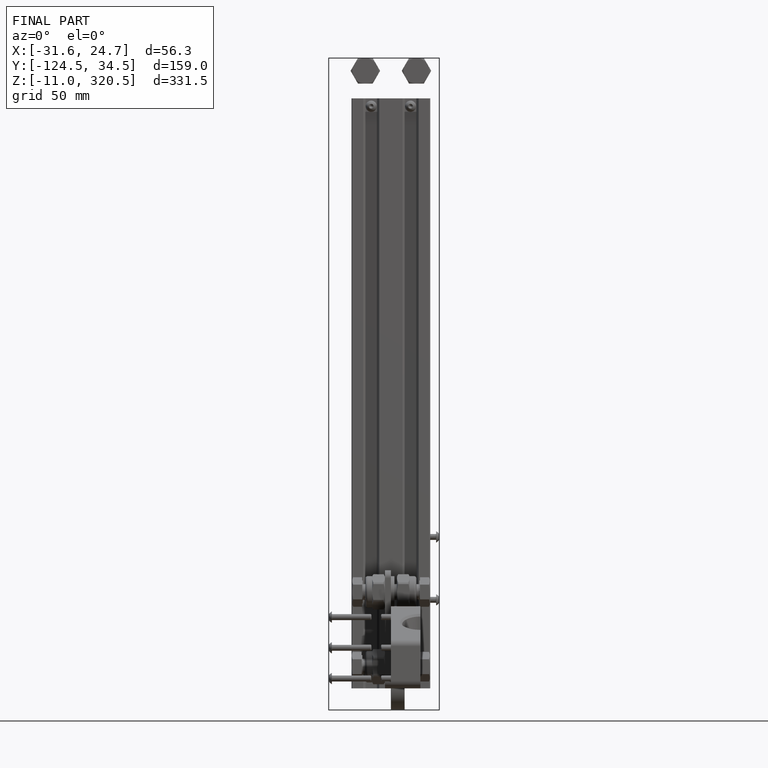
[diagram: finished part — front view with bounding-box wireframe]
